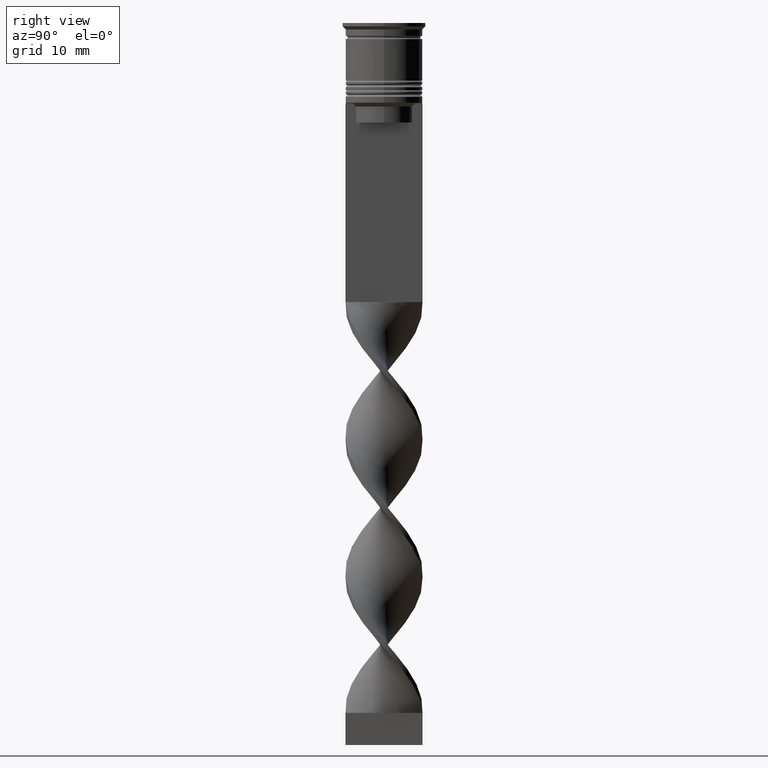
[diagram: clean part render]
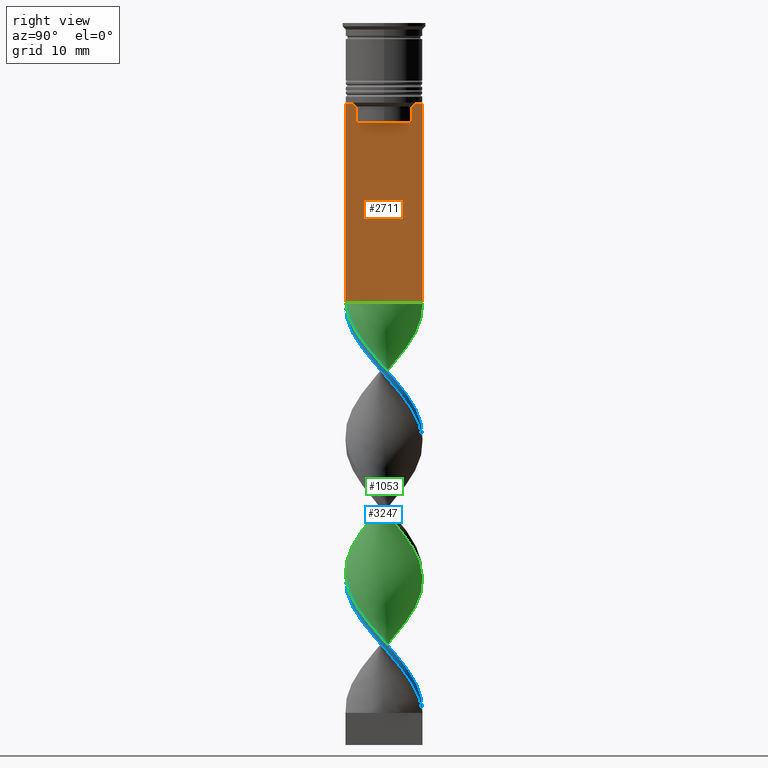
[diagram: same view with three faces highlighted in distinct colors, each labeled with its STEP entity id]
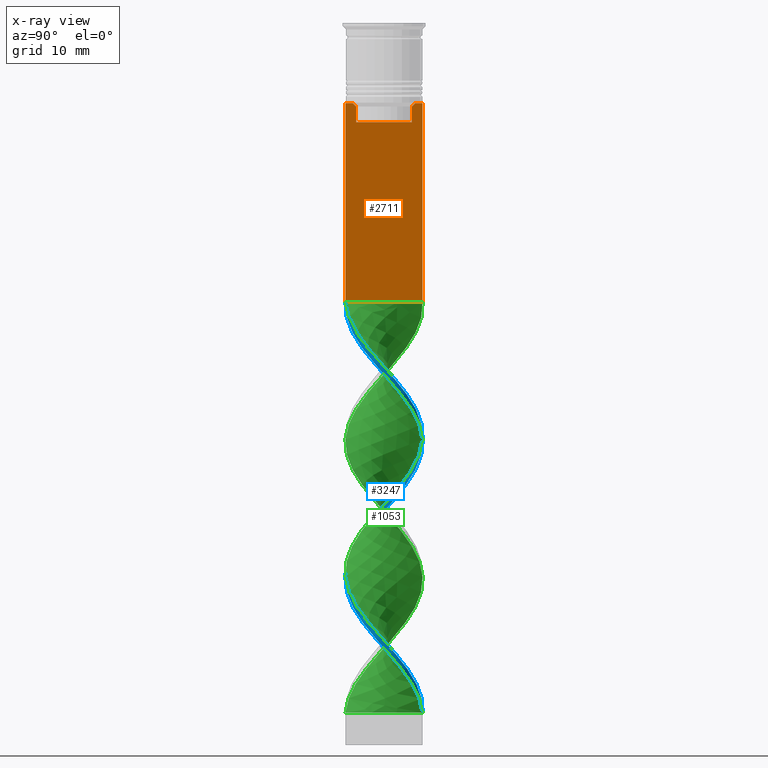
[diagram: x-ray of the same camera — body ghosted, the three highlighted faces saturated]
A machine part, right view with three faces highlighted in distinct colors.
The next image is the same camera in x-ray (body ghosted, the three faces saturated) — at least one of them is partly hidden behind the body in this view.
Their STEP definitions:

[orange] entity #2711 — the highlighted planar face has unit normal (-1, 0, 0).
#53 = AXIS2_PLACEMENT_3D ( 'NONE', #1636, #2394, #2124 ) ;
#70 = VERTEX_POINT ( 'NONE', #3139 ) ;
#76 = B_SPLINE_CURVE_WITH_KNOTS ( 'NONE', 3,
 ( #2959, #1521, #2634, #2372 ),
 .UNSPECIFIED., .F., .F.,
 ( 4, 4 ),
 ( 0.008336552452178421987, 0.009045730124312839626 ),
 .UNSPECIFIED. ) ;
#180 = EDGE_CURVE ( 'NONE', #349, #1875, #1499, .T. ) ;
#209 = CARTESIAN_POINT ( 'NONE',  ( 0.5000000000000002220, -6.000000000000000000, -0.4584054212077061097 ) ) ;
#238 = VECTOR ( 'NONE', #2759, 1000.000000000000000 ) ;
#243 = DIRECTION ( 'NONE',  ( 0.000000000000000000, 0.000000000000000000, -1.000000000000000000 ) ) ;
#264 = LINE ( 'NONE', #3081, #238 ) ;
#268 = VECTOR ( 'NONE', #521, 1000.000000000000000 ) ;
#319 = VECTOR ( 'NONE', #1967, 1000.000000000000000 ) ;
#349 = VERTEX_POINT ( 'NONE', #1861 ) ;
#369 = EDGE_CURVE ( 'NONE', #1691, #3536, #2701, .T. ) ;
#380 = CARTESIAN_POINT ( 'NONE',  ( 0.5000000000000002220, 4.371498598878878816, 0.000000000000000000 ) ) ;
#384 = VERTEX_POINT ( 'NONE', #2756 ) ;
#494 = CARTESIAN_POINT ( 'NONE',  ( 0.5000000000000002220, 6.000000000000000888, -0.4584054212077061097 ) ) ;
#504 = EDGE_CURVE ( 'NONE', #349, #3378, #2457, .T. ) ;
#505 = LINE ( 'NONE', #796, #2967 ) ;
#520 = PLANE ( 'NONE',  #53 ) ;
#521 = DIRECTION ( 'NONE',  ( 0.000000000000000000, -1.000000000000000000, 0.000000000000000000 ) ) ;
#571 = EDGE_LOOP ( 'NONE', ( #2486, #2567, #1252, #3412, #987, #889, #1748, #1281, #2665, #2432, #3178, #1980 ) ) ;
#586 = CARTESIAN_POINT ( 'NONE',  ( 0.5000000000000002220, -6.000000000000000000, -12.50000000000000000 ) ) ;
#596 = CARTESIAN_POINT ( 'NONE',  ( 0.5000000000000002220, -4.371498598878878816, 0.000000000000000000 ) ) ;
#679 = B_SPLINE_CURVE_WITH_KNOTS ( 'NONE', 3,
 ( #3257, #2110, #1033, #1014 ),
 .UNSPECIFIED., .F., .F.,
 ( 4, 4 ),
 ( 0.02089901220910808308, 0.02161421017310286019 ),
 .UNSPECIFIED. ) ;
#722 = VERTEX_POINT ( 'NONE', #3212 ) ;
#794 = EDGE_CURVE ( 'NONE', #2637, #1919, #76, .T. ) ;
#796 = CARTESIAN_POINT ( 'NONE',  ( 0.5000000000000002220, -6.000000000000000000, -12.50000000000000000 ) ) ;
#889 = ORIENTED_EDGE ( 'NONE', *, *, #1335, .T. ) ;
#987 = ORIENTED_EDGE ( 'NONE', *, *, #1128, .T. ) ;
#1014 = CARTESIAN_POINT ( 'NONE',  ( 0.5000000000000002220, -4.874423042781576676, -12.50000000000000000 ) ) ;
#1033 = CARTESIAN_POINT ( 'NONE',  ( 0.5000000000000002220, -4.706831372970962768, -12.66671687695981774 ) ) ;
#1068 = FACE_OUTER_BOUND ( 'NONE', #571, .T. ) ;
#1128 = EDGE_CURVE ( 'NONE', #2450, #384, #1418, .T. ) ;
#1252 = ORIENTED_EDGE ( 'NONE', *, *, #2526, .T. ) ;
#1281 = ORIENTED_EDGE ( 'NONE', *, *, #3129, .T. ) ;
#1335 = EDGE_CURVE ( 'NONE', #384, #70, #679, .T. ) ;
#1389 = LINE ( 'NONE', #586, #3262 ) ;
#1418 = LINE ( 'NONE', #596, #2937 ) ;
#1422 = DIRECTION ( 'NONE',  ( 0.000000000000000000, 0.000000000000000000, -1.000000000000000000 ) ) ;
#1499 = LINE ( 'NONE', #494, #2174 ) ;
#1521 = CARTESIAN_POINT ( 'NONE',  ( 0.5000000000000002220, 4.706831415367288329, -12.66671683478479160 ) ) ;
#1548 = DIRECTION ( 'NONE',  ( 0.000000000000000000, 0.000000000000000000, -1.000000000000000000 ) ) ;
#1561 = CARTESIAN_POINT ( 'NONE',  ( 0.5000000000000002220, 4.371498598878878816, -15.50000000000000000 ) ) ;
#1619 = LINE ( 'NONE', #2950, #1690 ) ;
#1625 = EDGE_CURVE ( 'NONE', #70, #722, #2786, .T. ) ;
#1636 = CARTESIAN_POINT ( 'NONE',  ( 0.5000000000000002220, -6.000000000000000000, -0.4584054212077061097 ) ) ;
#1667 = DIRECTION ( 'NONE',  ( 0.000000000000000000, -1.000000000000000000, 0.000000000000000000 ) ) ;
#1690 = VECTOR ( 'NONE', #3293, 1000.000000000000000 ) ;
#1691 = VERTEX_POINT ( 'NONE', #3365 ) ;
#1748 = ORIENTED_EDGE ( 'NONE', *, *, #1625, .T. ) ;
#1861 = CARTESIAN_POINT ( 'NONE',  ( 0.5000000000000002220, 6.000000000000000888, -12.50000000000000000 ) ) ;
#1875 = VERTEX_POINT ( 'NONE', #2256 ) ;
#1919 = VERTEX_POINT ( 'NONE', #2651 ) ;
#1945 = DIRECTION ( 'NONE',  ( -0.000000000000000000, -0.000000000000000000, 1.000000000000000000 ) ) ;
#1967 = DIRECTION ( 'NONE',  ( 0.000000000000000000, -1.000000000000000000, 0.000000000000000000 ) ) ;
#1980 = ORIENTED_EDGE ( 'NONE', *, *, #504, .T. ) ;
#1982 = CARTESIAN_POINT ( 'NONE',  ( 0.5000000000000002220, -4.371498598878878816, -15.50000000000000000 ) ) ;
#2110 = CARTESIAN_POINT ( 'NONE',  ( 0.5000000000000002220, -4.539195586926423331, -12.83338928448044314 ) ) ;
#2124 = DIRECTION ( 'NONE',  ( 0.000000000000000000, 0.000000000000000000, 1.000000000000000000 ) ) ;
#2174 = VECTOR ( 'NONE', #243, 1000.000000000000000 ) ;
#2256 = CARTESIAN_POINT ( 'NONE',  ( 0.5000000000000002220, 6.000000000000000888, -43.50000000000000000 ) ) ;
#2304 = LINE ( 'NONE', #380, #2794 ) ;
#2372 = CARTESIAN_POINT ( 'NONE',  ( 0.5000000000000002220, 4.371498598878878816, -13.00000000000000178 ) ) ;
#2394 = DIRECTION ( 'NONE',  ( -1.000000000000000000, 0.000000000000000000, 0.000000000000000000 ) ) ;
#2432 = ORIENTED_EDGE ( 'NONE', *, *, #3093, .T. ) ;
#2450 = VERTEX_POINT ( 'NONE', #1982 ) ;
#2457 = LINE ( 'NONE', #3302, #319 ) ;
#2486 = ORIENTED_EDGE ( 'NONE', *, *, #2586, .T. ) ;
#2526 = EDGE_CURVE ( 'NONE', #1919, #2974, #2304, .T. ) ;
#2567 = ORIENTED_EDGE ( 'NONE', *, *, #794, .T. ) ;
#2572 = EDGE_CURVE ( 'NONE', #2974, #2450, #1619, .T. ) ;
#2586 = EDGE_CURVE ( 'NONE', #3378, #2637, #505, .T. ) ;
#2634 = CARTESIAN_POINT ( 'NONE',  ( 0.5000000000000002220, 4.539195634199896467, -12.83338923751318816 ) ) ;
#2637 = VERTEX_POINT ( 'NONE', #2982 ) ;
#2651 = CARTESIAN_POINT ( 'NONE',  ( 0.5000000000000002220, 4.371498598878878816, -13.00000000000000178 ) ) ;
#2665 = ORIENTED_EDGE ( 'NONE', *, *, #369, .T. ) ;
#2701 = LINE ( 'NONE', #209, #2761 ) ;
#2711 = ADVANCED_FACE ( 'NONE', ( #1068 ), #520, .F. ) ;
#2712 = DIRECTION ( 'NONE',  ( 0.000000000000000000, -1.000000000000000000, 0.000000000000000000 ) ) ;
#2756 = CARTESIAN_POINT ( 'NONE',  ( 0.5000000000000002220, -4.371498598878878816, -13.00000000000000178 ) ) ;
#2759 = DIRECTION ( 'NONE',  ( 0.000000000000000000, 1.000000000000000000, 0.000000000000000000 ) ) ;
#2761 = VECTOR ( 'NONE', #1422, 1000.000000000000000 ) ;
#2786 = LINE ( 'NONE', #3090, #268 ) ;
#2794 = VECTOR ( 'NONE', #1548, 1000.000000000000000 ) ;
#2905 = CARTESIAN_POINT ( 'NONE',  ( 0.5000000000000002220, 5.878775382679627626, -12.50000000000000000 ) ) ;
#2937 = VECTOR ( 'NONE', #1945, 1000.000000000000000 ) ;
#2950 = CARTESIAN_POINT ( 'NONE',  ( 0.5000000000000002220, 4.399999999999999467, -15.50000000000000000 ) ) ;
#2959 = CARTESIAN_POINT ( 'NONE',  ( 0.5000000000000002220, 4.874423042781576676, -12.50000000000000000 ) ) ;
#2967 = VECTOR ( 'NONE', #2712, 1000.000000000000000 ) ;
#2974 = VERTEX_POINT ( 'NONE', #1561 ) ;
#2982 = CARTESIAN_POINT ( 'NONE',  ( 0.5000000000000002220, 4.874423042781576676, -12.50000000000000000 ) ) ;
#3081 = CARTESIAN_POINT ( 'NONE',  ( 0.5000000000000002220, -6.000000000000000000, -43.50000000000000000 ) ) ;
#3090 = CARTESIAN_POINT ( 'NONE',  ( 0.5000000000000002220, -6.000000000000000000, -12.50000000000000000 ) ) ;
#3093 = EDGE_CURVE ( 'NONE', #3536, #1875, #264, .T. ) ;
#3129 = EDGE_CURVE ( 'NONE', #722, #1691, #1389, .T. ) ;
#3139 = CARTESIAN_POINT ( 'NONE',  ( 0.5000000000000002220, -4.874423042781576676, -12.50000000000000000 ) ) ;
#3178 = ORIENTED_EDGE ( 'NONE', *, *, #180, .F. ) ;
#3212 = CARTESIAN_POINT ( 'NONE',  ( 0.5000000000000002220, -5.878775382679627626, -12.50000000000000000 ) ) ;
#3257 = CARTESIAN_POINT ( 'NONE',  ( 0.5000000000000002220, -4.371498598878878816, -13.00000000000000178 ) ) ;
#3262 = VECTOR ( 'NONE', #1667, 1000.000000000000000 ) ;
#3293 = DIRECTION ( 'NONE',  ( 0.000000000000000000, -1.000000000000000000, 0.000000000000000000 ) ) ;
#3302 = CARTESIAN_POINT ( 'NONE',  ( 0.5000000000000002220, -6.000000000000000000, -12.50000000000000000 ) ) ;
#3365 = CARTESIAN_POINT ( 'NONE',  ( 0.5000000000000002220, -6.000000000000000000, -12.50000000000000000 ) ) ;
#3378 = VERTEX_POINT ( 'NONE', #2905 ) ;
#3412 = ORIENTED_EDGE ( 'NONE', *, *, #2572, .T. ) ;
#3418 = CARTESIAN_POINT ( 'NONE',  ( 0.5000000000000002220, -5.999999999999999112, -43.50000000000000000 ) ) ;
#3536 = VERTEX_POINT ( 'NONE', #3418 ) ;

[blue] entity #3247 — the highlighted face is a freeform B-spline surface patch.
#10 = CARTESIAN_POINT ( 'NONE',  ( 4.352991323530321033, -4.159503159906209113, -48.42307692307691269 ) ) ;
#27 = CARTESIAN_POINT ( 'NONE',  ( 0.9504230770123223149, 5.945308736700090080, -63.19230769230768630 ) ) ;
#33 = CARTESIAN_POINT ( 'NONE',  ( 4.858046446425394294, 3.630954320453863016, -59.08974358974358410 ) ) ;
#50 = CARTESIAN_POINT ( 'NONE',  ( -0.9504230770123187622, 5.945308736700090968, -66.47435897435896379 ) ) ;
#59 = CARTESIAN_POINT ( 'NONE',  ( 4.858046446425393405, -3.630954320453865236, -49.24358974358973740 ) ) ;
#64 = CARTESIAN_POINT ( 'NONE',  ( 4.858046446425394294, 3.630954320453863016, -101.7564102564102484 ) ) ;
#66 = CARTESIAN_POINT ( 'NONE',  ( -2.345611019436009581, -5.545097739941142301, -82.88461538461537259 ) ) ;
#71 = CARTESIAN_POINT ( 'NONE',  ( 4.653870821996360263, -3.819880413333763158, -50.06410256410256210 ) ) ;
#79 = CARTESIAN_POINT ( 'NONE',  ( -5.117688277455215484, -3.254798188466751174, -78.78205128205127039 ) ) ;
#85 = CARTESIAN_POINT ( 'NONE',  ( -6.044068061194096231, -0.5036723384328406494, -75.50000000000000000 ) ) ;
#89 = CARTESIAN_POINT ( 'NONE',  ( 1.921364894438374549, 5.705993072412533174, -105.8589743589743506 ) ) ;
#97 = CARTESIAN_POINT ( 'NONE',  ( 5.432795012591220996, 2.595137443597920424, -56.62820512820513130 ) ) ;
#103 = CARTESIAN_POINT ( 'NONE',  ( -4.653870821996361151, -3.819880413333761826, -79.60256410256410220 ) ) ;
#113 = CARTESIAN_POINT ( 'NONE',  ( 6.016521584715985860, -0.2268656444829121599, -96.01282051282051100 ) ) ;
#126 = CARTESIAN_POINT ( 'NONE',  ( 3.604480575359220396, -4.822625818147004750, -91.08974358974359120 ) ) ;
#134 = CARTESIAN_POINT ( 'NONE',  ( -5.988975108237873712, 0.9574036273986639145, -73.85897435897436480 ) ) ;
#138 = CARTESIAN_POINT ( 'NONE',  ( 1.921364894438374549, 5.705993072412533174, -105.8589743589743506 ) ) ;
#145 = CARTESIAN_POINT ( 'NONE',  ( -5.432795012591220107, 2.595137443597922644, -73.03846153846153300 ) ) ;
#156 = CARTESIAN_POINT ( 'NONE',  ( -5.988975108237873712, -0.9574036273986618051, -77.14102564102563520 ) ) ;
#165 = CARTESIAN_POINT ( 'NONE',  ( -6.044068061194097119, 0.5036723384328423148, -75.50000000000000000 ) ) ;
#170 = CARTESIAN_POINT ( 'NONE',  ( -3.018907784180934417, 5.260288998093236579, -68.93589743589743080 ) ) ;
#188 = CARTESIAN_POINT ( 'NONE',  ( 5.117688277455213708, -3.254798188466753839, -50.88461538461538680 ) ) ;
#206 = CARTESIAN_POINT ( 'NONE',  ( 4.858046446425394294, 3.630954320453863016, -59.08974358974359120 ) ) ;
#224 = CARTESIAN_POINT ( 'NONE',  ( 0.9504230770123225369, 5.945308736700090968, -105.8589743589743506 ) ) ;
#240 = CARTESIAN_POINT ( 'NONE',  ( 3.604480575359220396, -4.822625818147004750, -91.08974358974359120 ) ) ;
#241 = VERTEX_POINT ( 'NONE', #2439 ) ;
#283 = CARTESIAN_POINT ( 'NONE',  ( -0.1666666666666661578, 5.999999999999999112, -107.5000000000000000 ) ) ;
#288 = ORIENTED_EDGE ( 'NONE', *, *, #2493, .T. ) ;
#303 = CARTESIAN_POINT ( 'NONE',  ( 3.018907784180934417, 5.260288998093234802, -60.73076923076922640 ) ) ;
#321 = CARTESIAN_POINT ( 'NONE',  ( -3.231067045089215384, 5.080374567897374405, -68.11538461538459899 ) ) ;
#326 = CARTESIAN_POINT ( 'NONE',  ( 0.2285318993335633819, -6.060710991611130360, -44.32051282051282470 ) ) ;
#334 = CARTESIAN_POINT ( 'NONE',  ( 3.018907784180935305, 5.260288998093234802, -60.73076923076922640 ) ) ;
#336 = CARTESIAN_POINT ( 'NONE',  ( 0.5000000000000005551, 6.000000000000000000, -107.5000000000000000 ) ) ;
#341 = CARTESIAN_POINT ( 'NONE',  ( -5.895984904460662257, -1.219574518580961220, -76.32051282051281760 ) ) ;
#345 = CARTESIAN_POINT ( 'NONE',  ( 1.672314254691077640, -5.829906481789053352, -45.96153846153845990 ) ) ;
#353 = CARTESIAN_POINT ( 'NONE',  ( -4.352991323530321033, 4.159503159906210001, -69.75641025641024839 ) ) ;
#358 = CARTESIAN_POINT ( 'NONE',  ( 3.231067045089216716, 5.080374567897374405, -104.2179487179487012 ) ) ;
#363 = CARTESIAN_POINT ( 'NONE',  ( 1.672314254691077640, -5.829906481789053352, -88.62820512820512420 ) ) ;
#368 = CARTESIAN_POINT ( 'NONE',  ( 5.585824691029640299, -2.362838774426348820, -93.55128205128204399 ) ) ;
#387 = CARTESIAN_POINT ( 'NONE',  ( -0.9504230770123258676, -5.945308736700090968, -84.52564102564103621 ) ) ;
#394 = CARTESIAN_POINT ( 'NONE',  ( 4.190053366537507706, 4.384962638200772034, -101.7564102564102484 ) ) ;
#397 = CARTESIAN_POINT ( 'NONE',  ( -4.858046446425396070, -3.630954320453860351, -80.42307692307691980 ) ) ;
#404 = CARTESIAN_POINT ( 'NONE',  ( 3.604480575359221728, 4.822625818147002974, -59.91025641025640880 ) ) ;
#411 = CARTESIAN_POINT ( 'NONE',  ( 5.221935568727515076, -2.996896547440107028, -92.73076923076922640 ) ) ;
#415 = CARTESIAN_POINT ( 'NONE',  ( 0.5000000000000005551, 6.000000000000000000, -107.5000000000000000 ) ) ;
#421 = CARTESIAN_POINT ( 'NONE',  ( -5.895984904460662257, 1.219574518580968325, -74.67948717948718240 ) ) ;
#441 = CARTESIAN_POINT ( 'NONE',  ( 0.2285318993335633819, -6.060710991611129472, -44.32051282051282470 ) ) ;
#456 = CARTESIAN_POINT ( 'NONE',  ( -0.2285318993335620774, 6.060710991611129472, -65.65384615384614619 ) ) ;
#473 = CARTESIAN_POINT ( 'NONE',  ( 2.345611019436006917, 5.545097739941143189, -104.2179487179487012 ) ) ;
#491 = CARTESIAN_POINT ( 'NONE',  ( -4.190053366537505042, 4.384962638200773810, -70.57692307692306599 ) ) ;
#510 = CARTESIAN_POINT ( 'NONE',  ( 1.672314254691077862, -5.829906481789053352, -88.62820512820513841 ) ) ;
#528 = CARTESIAN_POINT ( 'NONE',  ( -2.345611019436006028, 5.545097739941144077, -68.11538461538459899 ) ) ;
#540 = CARTESIAN_POINT ( 'NONE',  ( 5.585824691029638522, -2.362838774426348376, -50.88461538461537970 ) ) ;
#558 = DIRECTION ( 'NONE',  ( -1.000000000000000000, 0.000000000000000000, 0.000000000000000000 ) ) ;
#575 = CARTESIAN_POINT ( 'NONE',  ( -4.352991323530320145, 4.159503159906209113, -69.75641025641024839 ) ) ;
#592 = CARTESIAN_POINT ( 'NONE',  ( 0.2285318993335655469, 6.060710991611129472, -64.01282051282051100 ) ) ;
#601 = CARTESIAN_POINT ( 'NONE',  ( 4.352991323530321921, -4.159503159906209113, -48.42307692307691269 ) ) ;
#604 = CARTESIAN_POINT ( 'NONE',  ( 0.1666666666666672403, 6.000000000000000000, -107.5000000000000000 ) ) ;
#614 = CARTESIAN_POINT ( 'NONE',  ( 6.016521584715985860, 0.2268656444829105501, -54.98717948717948190 ) ) ;
#621 = CARTESIAN_POINT ( 'NONE',  ( 2.614197889543182107, -5.472697136436197596, -88.62820512820513841 ) ) ;
#631 = CARTESIAN_POINT ( 'NONE',  ( 5.787399899633756561, 1.660121200912505479, -99.29487179487178139 ) ) ;
#639 = CARTESIAN_POINT ( 'NONE',  ( -2.614197889543180331, 5.472697136436198484, -67.29487179487178139 ) ) ;
#646 = CARTESIAN_POINT ( 'NONE',  ( -0.4999999999999994449, 5.999999999999999112, -107.5000000000000000 ) ) ;
#649 = CARTESIAN_POINT ( 'NONE',  ( -5.117688277455211932, 3.254798188466756503, -72.21794871794871540 ) ) ;
#655 = CARTESIAN_POINT ( 'NONE',  ( 5.747901747727228283, 1.935476698729089007, -55.80769230769230660 ) ) ;
#662 = CARTESIAN_POINT ( 'NONE',  ( -5.747901747727229171, -1.935476698729087008, -77.14102564102563520 ) ) ;
#666 = CARTESIAN_POINT ( 'NONE',  ( -6.016521584715984972, -0.2268656444829071639, -76.32051282051281760 ) ) ;
#676 = CARTESIAN_POINT ( 'NONE',  ( 4.190053366537507706, 4.384962638200771146, -59.08974358974359120 ) ) ;
#682 = CARTESIAN_POINT ( 'NONE',  ( 5.747901747727227395, 1.935476698729089229, -98.47435897435896379 ) ) ;
#686 = CARTESIAN_POINT ( 'NONE',  ( 4.352991323530322809, 4.159503159906207337, -102.5769230769230660 ) ) ;
#694 = CARTESIAN_POINT ( 'NONE',  ( -5.747901747727229171, 1.935476698729089007, -73.85897435897436480 ) ) ;
#707 = CARTESIAN_POINT ( 'NONE',  ( -3.018907784180933973, 5.260288998093236579, -68.93589743589743080 ) ) ;
#713 = CARTESIAN_POINT ( 'NONE',  ( 5.221935568727516852, 2.996896547440106140, -58.26923076923076650 ) ) ;
#734 = CARTESIAN_POINT ( 'NONE',  ( 2.614197889543183884, 5.472697136436196708, -62.37179487179486870 ) ) ;
#749 = CARTESIAN_POINT ( 'NONE',  ( 4.190053366537507706, 4.384962638200771146, -101.7564102564102484 ) ) ;
#767 = CARTESIAN_POINT ( 'NONE',  ( 6.016521584715985860, 0.2268656444829105501, -54.98717948717948190 ) ) ;
#782 = CARTESIAN_POINT ( 'NONE',  ( 6.044068061194097119, -0.5036723384328415376, -54.16666666666666430 ) ) ;
#783 = CARTESIAN_POINT ( 'NONE',  ( 5.747901747727229171, -1.935476698729089451, -95.19230769230769340 ) ) ;
#811 = CARTESIAN_POINT ( 'NONE',  ( 0.5000000000000002220, -5.999999999999999112, -43.50000000000000000 ) ) ;
#840 = FACE_OUTER_BOUND ( 'NONE', #3325, .T. ) ;
#847 = CARTESIAN_POINT ( 'NONE',  ( 4.190053366537507706, 4.384962638200772034, -59.08974358974358410 ) ) ;
#861 = VERTEX_POINT ( 'NONE', #1269 ) ;
#863 = CARTESIAN_POINT ( 'NONE',  ( 4.653870821996360263, 3.819880413333762270, -58.26923076923076650 ) ) ;
#865 =( BOUNDED_CURVE ( )  B_SPLINE_CURVE ( 2, ( #811, #1157, #1104, #2839, #3384, #2820, #10, #2803, #3345, #540, #2262, #1433, #1924, #1361, #2467, #3072, #3585, #2226, #863, #847, #2766, #303, #2519, #3327, #27, #592, #1139, #1381, #3604, #1939, #321, #2212, #575, #2246, #1977, #3089, #1704, #3436, #2635, #85, #341, #662, #3422, #1232, #103, #2066, #920, #2281, #66, #1756, #2315, #3193, #3142, #1177, #1486, #2558, #1812, #1774, #2872, #903, #411, #2600, #1249, #1738, #2047, #2892, #1214, #682, #2353, #2028, #3474, #394, #3402, #1502, #975, #2333, #937, #3156, #646 ),
 .UNSPECIFIED., .F., .T. ) 
 B_SPLINE_CURVE_WITH_KNOTS ( ( 3, 2, 2, 2, 2, 2, 2, 2, 2, 2, 2, 2, 2, 2, 2, 2, 2, 2, 2, 2, 2, 2, 2, 2, 2, 2, 2, 2, 2, 2, 2, 2, 2, 2, 2, 2, 2, 2, 2, 3 ),
 ( 0.000000000000000000, 0.01923076923076923184, 0.03846153846153846367, 0.05769230769230768857, 0.07692307692307692735, 0.09615384615384615918, 0.1153846153846153771, 0.1346153846153846090, 0.1538461538461538547, 0.1730769230769230449, 0.1923076923076923184, 0.2115384615384615363, 0.2307692307692307543, 0.2500000000000000000, 0.2692307692307692180, 0.2884615384615384359, 0.3076923076923077094, 0.3269230769230769273, 0.3461538461538460898, 0.3653846153846153633, 0.3846153846153846367, 0.4038461538461539102, 0.4230769230769230727, 0.4423076923076922906, 0.4615384615384615086, 0.4807692307692307820, 0.5000000000000000000, 0.5192307692307692735, 0.5384615384615384359, 0.5576923076923077094, 0.5769230769230768718, 0.5961538461538461453, 0.6153846153846154188, 0.6346153846153845812, 0.6538461538461538547, 0.6730769230769230171, 0.6923076923076921796, 0.7115384615384615641, 0.7307692307692307265, 0.7500000000000000000 ),
 .UNSPECIFIED. ) 
 CURVE ( )  GEOMETRIC_REPRESENTATION_ITEM ( )  RATIONAL_B_SPLINE_CURVE ( ( 1.000000000000000000, 0.9927088740980539727, 1.000000000000000000, 0.9927088740980539727, 1.000000000000000000, 0.9927088740980539727, 1.000000000000000000, 0.9927088740980539727, 1.000000000000000000, 0.9927088740980539727, 1.000000000000000000, 0.9927088740980539727, 1.000000000000000000, 0.9927088740980539727, 1.000000000000000000, 0.9927088740980539727, 1.000000000000000000, 0.9927088740980539727, 1.000000000000000000, 0.9927088740980539727, 1.000000000000000000, 0.9927088740980539727, 1.000000000000000000, 0.9927088740980539727, 1.000000000000000000, 0.9927088740980539727, 1.000000000000000000, 0.9927088740980539727, 1.000000000000000000, 0.9927088740980539727, 1.000000000000000000, 0.9927088740980539727, 1.000000000000000000, 0.9927088740980539727, 1.000000000000000000, 0.9927088740980539727, 1.000000000000000000, 0.9927088740980539727, 1.000000000000000000, 0.9927088740980539727, 1.000000000000000000, 0.9927088740980539727, 1.000000000000000000, 0.9927088740980539727, 1.000000000000000000, 0.9927088740980539727, 1.000000000000000000, 0.9927088740980539727, 1.000000000000000000, 0.9927088740980539727, 1.000000000000000000, 0.9927088740980539727, 1.000000000000000000, 0.9927088740980539727, 1.000000000000000000, 0.9927088740980539727, 1.000000000000000000, 0.9927088740980539727, 1.000000000000000000, 0.9927088740980539727, 1.000000000000000000, 0.9927088740980539727, 1.000000000000000000, 0.9927088740980539727, 1.000000000000000000, 0.9927088740980539727, 1.000000000000000000, 0.9927088740980539727, 1.000000000000000000, 0.9927088740980539727, 1.000000000000000000, 0.9927088740980539727, 1.000000000000000000, 0.9927088740980539727, 1.000000000000000000, 0.9927088740980539727, 1.000000000000000000, 0.9927088740980539727, 1.000000000000000000 ) ) 
 REPRESENTATION_ITEM ( '' )  );
#878 = CARTESIAN_POINT ( 'NONE',  ( 1.672314254691079638, 5.829906481789052464, -62.37179487179486870 ) ) ;
#887 = CARTESIAN_POINT ( 'NONE',  ( 5.988975108237873712, 0.9574036273986640255, -55.80769230769230660 ) ) ;
#895 = CARTESIAN_POINT ( 'NONE',  ( 0.5000000000000002220, -6.000000000000000000, -86.16666666666667140 ) ) ;
#903 = CARTESIAN_POINT ( 'NONE',  ( 4.858046446425392517, -3.630954320453864348, -91.91025641025643722 ) ) ;
#909 = CARTESIAN_POINT ( 'NONE',  ( 5.895984904460662257, -1.219574518580966105, -96.01282051282051100 ) ) ;
#914 = CARTESIAN_POINT ( 'NONE',  ( -3.018907784180935749, -5.260288998093234802, -82.06410256410255499 ) ) ;
#920 = CARTESIAN_POINT ( 'NONE',  ( -3.604480575359221728, -4.822625818147002086, -81.24358974358973740 ) ) ;
#924 = CARTESIAN_POINT ( 'NONE',  ( -5.585824691029640299, -2.362838774426345712, -78.78205128205127039 ) ) ;
#932 = CARTESIAN_POINT ( 'NONE',  ( 3.847936200635250437, -4.688051999358553878, -47.60256410256408799 ) ) ;
#937 = CARTESIAN_POINT ( 'NONE',  ( 0.9504230770123223149, 5.945308736700090080, -105.8589743589743506 ) ) ;
#949 = CARTESIAN_POINT ( 'NONE',  ( 5.988975108237873712, -0.9574036273986643586, -52.52564102564103621 ) ) ;
#960 = CARTESIAN_POINT ( 'NONE',  ( 5.117688277455213708, -3.254798188466753839, -93.55128205128204399 ) ) ;
#969 = CARTESIAN_POINT ( 'NONE',  ( -5.432795012591220107, 2.595137443597922644, -73.03846153846153300 ) ) ;
#975 = CARTESIAN_POINT ( 'NONE',  ( 2.345611019436006472, 5.545097739941142301, -104.2179487179487012 ) ) ;
#979 = CARTESIAN_POINT ( 'NONE',  ( -0.4999999999999997780, -6.000000000000000000, -86.16666666666667140 ) ) ;
#985 = CARTESIAN_POINT ( 'NONE',  ( 0.5000000000000005551, 6.000000000000000000, -64.83333333333332860 ) ) ;
#1003 = CARTESIAN_POINT ( 'NONE',  ( -1.921364894438377657, -5.705993072412531397, -84.52564102564103621 ) ) ;
#1023 = CARTESIAN_POINT ( 'NONE',  ( -4.858046446425396070, -3.630954320453860351, -80.42307692307691980 ) ) ;
#1038 = CARTESIAN_POINT ( 'NONE',  ( 1.228531899333566102, 5.939289008388869640, -64.01282051282051100 ) ) ;
#1055 = CARTESIAN_POINT ( 'NONE',  ( -0.4999999999999997780, -6.000000000000000000, -43.50000000000000000 ) ) ;
#1056 = CARTESIAN_POINT ( 'NONE',  ( 5.895984904460662257, -1.219574518580966105, -96.01282051282051100 ) ) ;
#1075 = CARTESIAN_POINT ( 'NONE',  ( 5.221935568727516852, 2.996896547440106140, -58.26923076923076650 ) ) ;
#1104 = CARTESIAN_POINT ( 'NONE',  ( 1.921364894438372550, -5.705993072412533174, -45.14102564102563520 ) ) ;
#1105 = CARTESIAN_POINT ( 'NONE',  ( 0.5000000000000002220, -6.000000000000000000, -43.50000000000000000 ) ) ;
#1114 = CARTESIAN_POINT ( 'NONE',  ( 0.5000000000000002220, -6.000000000000000000, -43.50000000000000000 ) ) ;
#1139 = CARTESIAN_POINT ( 'NONE',  ( -0.4999999999999994449, 5.999999999999999112, -64.83333333333332860 ) ) ;
#1144 = CARTESIAN_POINT ( 'NONE',  ( 5.747901747727229171, -1.935476698729089451, -52.52564102564102910 ) ) ;
#1157 = CARTESIAN_POINT ( 'NONE',  ( 1.228531899333563215, -5.939289008388868751, -44.32051282051282470 ) ) ;
#1170 = CARTESIAN_POINT ( 'NONE',  ( -0.2285318993335664073, -6.060710991611129472, -85.34615384615383959 ) ) ;
#1177 = CARTESIAN_POINT ( 'NONE',  ( 1.228531899333563215, -5.939289008388868751, -86.98717948717948900 ) ) ;
#1181 = CARTESIAN_POINT ( 'NONE',  ( 4.190053366537506818, -4.384962638200773810, -49.24358974358974450 ) ) ;
#1187 = CARTESIAN_POINT ( 'NONE',  ( -5.747901747727230060, -1.935476698729087008, -77.14102564102563520 ) ) ;
#1200 = CARTESIAN_POINT ( 'NONE',  ( 4.858046446425394294, 3.630954320453863016, -101.7564102564102484 ) ) ;
#1207 = CARTESIAN_POINT ( 'NONE',  ( 5.221935568727515964, -2.996896547440107472, -50.06410256410256210 ) ) ;
#1214 = CARTESIAN_POINT ( 'NONE',  ( 5.895984904460661369, 1.219574518580964329, -97.65384615384614619 ) ) ;
#1217 = CARTESIAN_POINT ( 'NONE',  ( 4.190053366537506818, -4.384962638200773810, -91.91025641025643722 ) ) ;
#1225 = CARTESIAN_POINT ( 'NONE',  ( -3.231067045089215828, 5.080374567897375293, -68.11538461538459899 ) ) ;
#1232 = CARTESIAN_POINT ( 'NONE',  ( -5.117688277455215484, -3.254798188466750286, -78.78205128205127039 ) ) ;
#1235 = CARTESIAN_POINT ( 'NONE',  ( 3.018907784180934417, -5.260288998093235691, -90.26923076923077360 ) ) ;
#1238 =( BOUNDED_SURFACE ( )  B_SPLINE_SURFACE ( 1, 2, ( 
 ( #1114, #3337, #1954, #2795, #2008, #932, #601, #59, #1207, #2275, #1766, #949, #2570, #1715, #1242, #655, #97, #2610, #2902, #676, #404, #334, #2345, #878, #2022, #1785, #3394, #2592, #2309, #639, #1225, #1515, #353, #2630, #3429, #3101, #2040, #134, #2886, #1750, #3151, #1187, #1989, #79, #2834, #1462, #1732, #914, #1446, #2551, #387, #1170, #895, #3121, #1496, #621, #2848, #2293, #3416, #3136, #2866, #368, #1478, #2058, #113, #2328, #3447, #3168, #3468, #2988, #2646, #749, #2718, #1858, #473, #3266, #224, #3244, #1803 ),
 ( #1840, #441, #1555, #2078, #2955, #2130, #1874, #1587, #2398, #188, #1821, #1295, #2698, #2973, #767, #2919, #2936, #1315, #713, #206, #3540, #3186, #1332, #734, #2418, #1038, #985, #456, #2664, #1570, #2145, #170, #1264, #491, #2097, #1609, #969, #694, #421, #2681, #1532, #156, #3206, #3520, #1279, #1023, #2366, #2384, #3485, #3504, #1003, #2113, #3225, #1624, #2736, #510, #3281, #2165, #240, #1895, #2435, #3010, #3555, #783, #1056, #2633, #3399, #2313, #1993, #1449, #2598, #64, #3154, #2331, #358, #3105, #138, #2045, #1484 ) ),
 .UNSPECIFIED., .F., .F., .F. ) 
 B_SPLINE_SURFACE_WITH_KNOTS ( ( 2, 2 ),
 ( 3, 2, 2, 2, 2, 2, 2, 2, 2, 2, 2, 2, 2, 2, 2, 2, 2, 2, 2, 2, 2, 2, 2, 2, 2, 2, 2, 2, 2, 2, 2, 2, 2, 2, 2, 2, 2, 2, 2, 3 ),
 ( 0.000000000000000000, 1.000000000000000000 ),
 ( 0.000000000000000000, 0.01923076923076923184, 0.03846153846153846367, 0.05769230769230769551, 0.07692307692307692735, 0.09615384615384615918, 0.1153846153846153910, 0.1346153846153846090, 0.1538461538461538547, 0.1730769230769230727, 0.1923076923076923184, 0.2115384615384615363, 0.2307692307692307820, 0.2500000000000000000, 0.2692307692307692180, 0.2884615384615384359, 0.3076923076923077094, 0.3269230769230769273, 0.3461538461538461453, 0.3653846153846153633, 0.3846153846153846367, 0.4038461538461538547, 0.4230769230769230727, 0.4423076923076922906, 0.4615384615384615641, 0.4807692307692307820, 0.5000000000000000000, 0.5192307692307692735, 0.5384615384615384359, 0.5576923076923077094, 0.5769230769230768718, 0.5961538461538461453, 0.6153846153846154188, 0.6346153846153845812, 0.6538461538461538547, 0.6730769230769231282, 0.6923076923076922906, 0.7115384615384615641, 0.7307692307692307265, 0.7500000000000000000 ),
 .UNSPECIFIED. ) 
 GEOMETRIC_REPRESENTATION_ITEM ( )  RATIONAL_B_SPLINE_SURFACE ( (
 ( 1.000000000000000000, 0.9927088740980539727, 1.000000000000000000, 0.9927088740980539727, 1.000000000000000000, 0.9927088740980539727, 1.000000000000000000, 0.9927088740980539727, 1.000000000000000000, 0.9927088740980539727, 1.000000000000000000, 0.9927088740980539727, 1.000000000000000000, 0.9927088740980539727, 1.000000000000000000, 0.9927088740980539727, 1.000000000000000000, 0.9927088740980539727, 1.000000000000000000, 0.9927088740980539727, 1.000000000000000000, 0.9927088740980539727, 1.000000000000000000, 0.9927088740980539727, 1.000000000000000000, 0.9927088740980539727, 1.000000000000000000, 0.9927088740980539727, 1.000000000000000000, 0.9927088740980539727, 1.000000000000000000, 0.9927088740980539727, 1.000000000000000000, 0.9927088740980539727, 1.000000000000000000, 0.9927088740980539727, 1.000000000000000000, 0.9927088740980539727, 1.000000000000000000, 0.9927088740980539727, 1.000000000000000000, 0.9927088740980539727, 1.000000000000000000, 0.9927088740980539727, 1.000000000000000000, 0.9927088740980539727, 1.000000000000000000, 0.9927088740980539727, 1.000000000000000000, 0.9927088740980539727, 1.000000000000000000, 0.9927088740980539727, 1.000000000000000000, 0.9927088740980539727, 1.000000000000000000, 0.9927088740980539727, 1.000000000000000000, 0.9927088740980539727, 1.000000000000000000, 0.9927088740980539727, 1.000000000000000000, 0.9927088740980539727, 1.000000000000000000, 0.9927088740980539727, 1.000000000000000000, 0.9927088740980539727, 1.000000000000000000, 0.9927088740980539727, 1.000000000000000000, 0.9927088740980539727, 1.000000000000000000, 0.9927088740980539727, 1.000000000000000000, 0.9927088740980539727, 1.000000000000000000, 0.9927088740980539727, 1.000000000000000000, 0.9927088740980539727, 1.000000000000000000),
 ( 1.000000000000000000, 0.9927088740980539727, 1.000000000000000000, 0.9927088740980539727, 1.000000000000000000, 0.9927088740980539727, 1.000000000000000000, 0.9927088740980539727, 1.000000000000000000, 0.9927088740980539727, 1.000000000000000000, 0.9927088740980539727, 1.000000000000000000, 0.9927088740980539727, 1.000000000000000000, 0.9927088740980539727, 1.000000000000000000, 0.9927088740980539727, 1.000000000000000000, 0.9927088740980539727, 1.000000000000000000, 0.9927088740980539727, 1.000000000000000000, 0.9927088740980539727, 1.000000000000000000, 0.9927088740980539727, 1.000000000000000000, 0.9927088740980539727, 1.000000000000000000, 0.9927088740980539727, 1.000000000000000000, 0.9927088740980539727, 1.000000000000000000, 0.9927088740980539727, 1.000000000000000000, 0.9927088740980539727, 1.000000000000000000, 0.9927088740980539727, 1.000000000000000000, 0.9927088740980539727, 1.000000000000000000, 0.9927088740980539727, 1.000000000000000000, 0.9927088740980539727, 1.000000000000000000, 0.9927088740980539727, 1.000000000000000000, 0.9927088740980539727, 1.000000000000000000, 0.9927088740980539727, 1.000000000000000000, 0.9927088740980539727, 1.000000000000000000, 0.9927088740980539727, 1.000000000000000000, 0.9927088740980539727, 1.000000000000000000, 0.9927088740980539727, 1.000000000000000000, 0.9927088740980539727, 1.000000000000000000, 0.9927088740980539727, 1.000000000000000000, 0.9927088740980539727, 1.000000000000000000, 0.9927088740980539727, 1.000000000000000000, 0.9927088740980539727, 1.000000000000000000, 0.9927088740980539727, 1.000000000000000000, 0.9927088740980539727, 1.000000000000000000, 0.9927088740980539727, 1.000000000000000000, 0.9927088740980539727, 1.000000000000000000, 0.9927088740980539727, 1.000000000000000000) ) ) 
 REPRESENTATION_ITEM ( '' )  SURFACE ( )  );
#1242 = CARTESIAN_POINT ( 'NONE',  ( 5.895984904460662257, 1.219574518580964551, -54.98717948717948190 ) ) ;
#1249 = CARTESIAN_POINT ( 'NONE',  ( 5.787399899633755673, -1.660121200912507033, -94.37179487179486159 ) ) ;
#1255 = CARTESIAN_POINT ( 'NONE',  ( -4.653870821996360263, 3.819880413333763158, -71.39743589743588359 ) ) ;
#1264 = CARTESIAN_POINT ( 'NONE',  ( -3.604480575359219507, 4.822625818147005639, -69.75641025641024839 ) ) ;
#1269 = CARTESIAN_POINT ( 'NONE',  ( 0.5000000000000005551, 6.000000000000000000, -107.5000000000000000 ) ) ;
#1274 = CARTESIAN_POINT ( 'NONE',  ( 6.044068061194097119, -0.5036723384328415376, -96.83333333333332860 ) ) ;
#1279 = CARTESIAN_POINT ( 'NONE',  ( -5.221935568727517740, -2.996896547440105252, -79.60256410256410220 ) ) ;
#1295 = CARTESIAN_POINT ( 'NONE',  ( 5.747901747727229171, -1.935476698729089451, -52.52564102564103621 ) ) ;
#1315 = CARTESIAN_POINT ( 'NONE',  ( 5.585824691029640299, 2.362838774426348376, -57.44871794871794890 ) ) ;
#1332 = CARTESIAN_POINT ( 'NONE',  ( 3.231067045089216716, 5.080374567897374405, -61.55128205128204399 ) ) ;
#1349 = CARTESIAN_POINT ( 'NONE',  ( 5.585824691029639411, 2.362838774426348376, -57.44871794871794890 ) ) ;
#1361 = CARTESIAN_POINT ( 'NONE',  ( 6.044068061194096231, 0.5036723384328413156, -54.16666666666666430 ) ) ;
#1377 = ORIENTED_EDGE ( 'NONE', *, *, #2807, .F. ) ;
#1381 = CARTESIAN_POINT ( 'NONE',  ( -1.228531899333561883, 5.939289008388868751, -65.65384615384614619 ) ) ;
#1433 = CARTESIAN_POINT ( 'NONE',  ( 5.988975108237873712, -0.9574036273986640255, -52.52564102564102910 ) ) ;
#1438 = CARTESIAN_POINT ( 'NONE',  ( 0.5000000000000005551, 6.000000000000000000, -64.83333333333332860 ) ) ;
#1446 = CARTESIAN_POINT ( 'NONE',  ( -2.345611019436010025, -5.545097739941143189, -82.88461538461537259 ) ) ;
#1449 = CARTESIAN_POINT ( 'NONE',  ( 5.585824691029640299, 2.362838774426348376, -100.1153846153846274 ) ) ;
#1462 = CARTESIAN_POINT ( 'NONE',  ( -4.190053366537510371, -4.384962638200768481, -80.42307692307691980 ) ) ;
#1471 = CARTESIAN_POINT ( 'NONE',  ( 2.345611019436006028, -5.545097739941144077, -89.44871794871794179 ) ) ;
#1478 = CARTESIAN_POINT ( 'NONE',  ( 5.787399899633756561, -1.660121200912507478, -94.37179487179486159 ) ) ;
#1484 = CARTESIAN_POINT ( 'NONE',  ( 0.5000000000000005551, 6.000000000000000000, -107.5000000000000000 ) ) ;
#1486 = CARTESIAN_POINT ( 'NONE',  ( 1.921364894438372550, -5.705993072412533174, -87.80769230769230660 ) ) ;
#1491 = CARTESIAN_POINT ( 'NONE',  ( 3.231067045089216716, 5.080374567897374405, -104.2179487179487012 ) ) ;
#1496 = CARTESIAN_POINT ( 'NONE',  ( 1.921364894438372772, -5.705993072412534062, -87.80769230769230660 ) ) ;
#1502 = CARTESIAN_POINT ( 'NONE',  ( 3.018907784180934417, 5.260288998093234802, -103.3974358974358836 ) ) ;
#1506 = CARTESIAN_POINT ( 'NONE',  ( -1.228531899333566768, -5.939289008388869640, -85.34615384615385381 ) ) ;
#1515 = CARTESIAN_POINT ( 'NONE',  ( -3.847936200635249993, 4.688051999358554767, -68.93589743589743080 ) ) ;
#1532 = CARTESIAN_POINT ( 'NONE',  ( -6.016521584715984972, -0.2268656444829071639, -76.32051282051281760 ) ) ;
#1555 = CARTESIAN_POINT ( 'NONE',  ( 0.9504230770123207606, -5.945308736700090968, -45.14102564102563520 ) ) ;
#1570 = CARTESIAN_POINT ( 'NONE',  ( -1.672314254691075641, 5.829906481789053352, -67.29487179487178139 ) ) ;
#1587 = CARTESIAN_POINT ( 'NONE',  ( 4.190053366537506818, -4.384962638200772922, -49.24358974358973740 ) ) ;
#1607 = VECTOR ( 'NONE', #558, 1000.000000000000000 ) ;
#1609 = CARTESIAN_POINT ( 'NONE',  ( -5.117688277455211932, 3.254798188466756947, -72.21794871794871540 ) ) ;
#1623 = CARTESIAN_POINT ( 'NONE',  ( 3.604480575359220396, -4.822625818147004750, -48.42307692307691269 ) ) ;
#1624 = CARTESIAN_POINT ( 'NONE',  ( 0.2285318993335633819, -6.060710991611129472, -86.98717948717948900 ) ) ;
#1638 =( BOUNDED_CURVE ( )  B_SPLINE_CURVE ( 2, ( #1055, #326, #2164, #345, #3280, #1998, #1623, #1181, #71, #2268, #3571, #1144, #2523, #782, #614, #887, #3009, #1349, #1075, #33, #3299, #2249, #1708, #1910, #2545, #3367, #1438, #3025, #50, #3387, #528, #707, #2860, #1759, #1255, #649, #145, #3479, #3131, #165, #666, #2896, #2337, #924, #1779, #397, #3458, #3406, #2017, #1795, #2658, #1506, #979, #2620, #2089, #363, #1471, #1235, #126, #1217, #3159, #960, #3197, #3146, #909, #1274, #2031, #2071, #631, #2582, #3179, #1200, #686, #1816, #1491, #1742, #89, #2911, #415 ),
 .UNSPECIFIED., .F., .T. ) 
 B_SPLINE_CURVE_WITH_KNOTS ( ( 3, 2, 2, 2, 2, 2, 2, 2, 2, 2, 2, 2, 2, 2, 2, 2, 2, 2, 2, 2, 2, 2, 2, 2, 2, 2, 2, 2, 2, 2, 2, 2, 2, 2, 2, 2, 2, 2, 2, 3 ),
 ( 0.000000000000000000, 0.01923076923076923184, 0.03846153846153846367, 0.05769230769230768857, 0.07692307692307692735, 0.09615384615384615918, 0.1153846153846153771, 0.1346153846153846090, 0.1538461538461538547, 0.1730769230769230449, 0.1923076923076923184, 0.2115384615384615363, 0.2307692307692307543, 0.2500000000000000000, 0.2692307692307692180, 0.2884615384615384359, 0.3076923076923077094, 0.3269230769230769273, 0.3461538461538460898, 0.3653846153846153633, 0.3846153846153846367, 0.4038461538461539102, 0.4230769230769230727, 0.4423076923076922906, 0.4615384615384615086, 0.4807692307692307820, 0.5000000000000000000, 0.5192307692307692735, 0.5384615384615384359, 0.5576923076923077094, 0.5769230769230768718, 0.5961538461538461453, 0.6153846153846154188, 0.6346153846153845812, 0.6538461538461538547, 0.6730769230769230171, 0.6923076923076921796, 0.7115384615384615641, 0.7307692307692307265, 0.7500000000000000000 ),
 .UNSPECIFIED. ) 
 CURVE ( )  GEOMETRIC_REPRESENTATION_ITEM ( )  RATIONAL_B_SPLINE_CURVE ( ( 1.000000000000000000, 0.9927088740980539727, 1.000000000000000000, 0.9927088740980539727, 1.000000000000000000, 0.9927088740980539727, 1.000000000000000000, 0.9927088740980539727, 1.000000000000000000, 0.9927088740980539727, 1.000000000000000000, 0.9927088740980539727, 1.000000000000000000, 0.9927088740980539727, 1.000000000000000000, 0.9927088740980539727, 1.000000000000000000, 0.9927088740980539727, 1.000000000000000000, 0.9927088740980539727, 1.000000000000000000, 0.9927088740980539727, 1.000000000000000000, 0.9927088740980539727, 1.000000000000000000, 0.9927088740980539727, 1.000000000000000000, 0.9927088740980539727, 1.000000000000000000, 0.9927088740980539727, 1.000000000000000000, 0.9927088740980539727, 1.000000000000000000, 0.9927088740980539727, 1.000000000000000000, 0.9927088740980539727, 1.000000000000000000, 0.9927088740980539727, 1.000000000000000000, 0.9927088740980539727, 1.000000000000000000, 0.9927088740980539727, 1.000000000000000000, 0.9927088740980539727, 1.000000000000000000, 0.9927088740980539727, 1.000000000000000000, 0.9927088740980539727, 1.000000000000000000, 0.9927088740980539727, 1.000000000000000000, 0.9927088740980539727, 1.000000000000000000, 0.9927088740980539727, 1.000000000000000000, 0.9927088740980539727, 1.000000000000000000, 0.9927088740980539727, 1.000000000000000000, 0.9927088740980539727, 1.000000000000000000, 0.9927088740980539727, 1.000000000000000000, 0.9927088740980539727, 1.000000000000000000, 0.9927088740980539727, 1.000000000000000000, 0.9927088740980539727, 1.000000000000000000, 0.9927088740980539727, 1.000000000000000000, 0.9927088740980539727, 1.000000000000000000, 0.9927088740980539727, 1.000000000000000000, 0.9927088740980539727, 1.000000000000000000, 0.9927088740980539727, 1.000000000000000000 ) ) 
 REPRESENTATION_ITEM ( '' )  );
#1704 = CARTESIAN_POINT ( 'NONE',  ( -5.787399899633755673, 1.660121200912507478, -73.03846153846153300 ) ) ;
#1708 = CARTESIAN_POINT ( 'NONE',  ( 3.231067045089216716, 5.080374567897374405, -61.55128205128204399 ) ) ;
#1715 = CARTESIAN_POINT ( 'NONE',  ( 6.044068061194097119, 0.5036723384328413156, -54.16666666666665719 ) ) ;
#1732 = CARTESIAN_POINT ( 'NONE',  ( -3.604480575359222616, -4.822625818147002086, -81.24358974358973740 ) ) ;
#1738 = CARTESIAN_POINT ( 'NONE',  ( 5.988975108237873712, -0.9574036273986640255, -95.19230769230769340 ) ) ;
#1741 = EDGE_CURVE ( 'NONE', #3536, #241, #2213, .T. ) ;
#1742 = CARTESIAN_POINT ( 'NONE',  ( 2.614197889543183884, 5.472697136436196708, -105.0384615384615188 ) ) ;
#1750 = CARTESIAN_POINT ( 'NONE',  ( -6.044068061194097119, -0.5036723384328405384, -75.49999999999998579 ) ) ;
#1756 = CARTESIAN_POINT ( 'NONE',  ( -1.672314254691079416, -5.829906481789051576, -83.70512820512820440 ) ) ;
#1759 = CARTESIAN_POINT ( 'NONE',  ( -4.190053366537505042, 4.384962638200774698, -70.57692307692306599 ) ) ;
#1766 = CARTESIAN_POINT ( 'NONE',  ( 5.787399899633756561, -1.660121200912507478, -51.70512820512820440 ) ) ;
#1774 = CARTESIAN_POINT ( 'NONE',  ( 3.847936200635249993, -4.688051999358552990, -90.26923076923077360 ) ) ;
#1779 = CARTESIAN_POINT ( 'NONE',  ( -5.221935568727517740, -2.996896547440105252, -79.60256410256410220 ) ) ;
#1785 = CARTESIAN_POINT ( 'NONE',  ( 0.2285318993335656579, 6.060710991611129472, -64.01282051282051100 ) ) ;
#1795 = CARTESIAN_POINT ( 'NONE',  ( -2.614197889543184328, -5.472697136436196708, -83.70512820512820440 ) ) ;
#1799 = ORIENTED_EDGE ( 'NONE', *, *, #1741, .T. ) ;
#1803 = CARTESIAN_POINT ( 'NONE',  ( -0.4999999999999994449, 6.000000000000000000, -107.5000000000000000 ) ) ;
#1812 = CARTESIAN_POINT ( 'NONE',  ( 3.231067045089215828, -5.080374567897374405, -89.44871794871794179 ) ) ;
#1816 = CARTESIAN_POINT ( 'NONE',  ( 3.847936200635250881, 4.688051999358552990, -103.3974358974358836 ) ) ;
#1821 = CARTESIAN_POINT ( 'NONE',  ( 5.432795012591220107, -2.595137443597922200, -51.70512820512820440 ) ) ;
#1840 = CARTESIAN_POINT ( 'NONE',  ( -0.4999999999999997780, -6.000000000000000000, -43.50000000000000000 ) ) ;
#1858 = CARTESIAN_POINT ( 'NONE',  ( 3.018907784180935305, 5.260288998093234802, -103.3974358974358694 ) ) ;
#1874 = CARTESIAN_POINT ( 'NONE',  ( 3.604480575359220396, -4.822625818147004750, -48.42307692307691269 ) ) ;
#1895 = CARTESIAN_POINT ( 'NONE',  ( 4.190053366537506818, -4.384962638200772922, -91.91025641025643722 ) ) ;
#1910 = CARTESIAN_POINT ( 'NONE',  ( 2.614197889543183884, 5.472697136436196708, -62.37179487179486870 ) ) ;
#1924 = CARTESIAN_POINT ( 'NONE',  ( 6.016521584715984972, -0.2268656444829120489, -53.34615384615383959 ) ) ;
#1939 = CARTESIAN_POINT ( 'NONE',  ( -2.614197889543180331, 5.472697136436197596, -67.29487179487178139 ) ) ;
#1954 = CARTESIAN_POINT ( 'NONE',  ( 1.921364894438372772, -5.705993072412534062, -45.14102564102563520 ) ) ;
#1977 = CARTESIAN_POINT ( 'NONE',  ( -5.221935568727515076, 2.996896547440107028, -71.39743589743588359 ) ) ;
#1985 = VERTEX_POINT ( 'NONE', #2703 ) ;
#1989 = CARTESIAN_POINT ( 'NONE',  ( -5.432795012591220996, -2.595137443597921312, -77.96153846153845279 ) ) ;
#1993 = CARTESIAN_POINT ( 'NONE',  ( 5.787399899633756561, 1.660121200912505479, -99.29487179487178139 ) ) ;
#1998 = CARTESIAN_POINT ( 'NONE',  ( 3.018907784180934417, -5.260288998093235691, -47.60256410256409509 ) ) ;
#2008 = CARTESIAN_POINT ( 'NONE',  ( 3.231067045089215828, -5.080374567897375293, -46.78205128205127750 ) ) ;
#2017 = CARTESIAN_POINT ( 'NONE',  ( -3.231067045089219825, -5.080374567897373517, -82.88461538461537259 ) ) ;
#2022 = CARTESIAN_POINT ( 'NONE',  ( 0.9504230770123225369, 5.945308736700090968, -63.19230769230768630 ) ) ;
#2028 = CARTESIAN_POINT ( 'NONE',  ( 5.117688277455212820, 3.254798188466753395, -100.1153846153846132 ) ) ;
#2031 = CARTESIAN_POINT ( 'NONE',  ( 6.016521584715985860, 0.2268656444829105501, -97.65384615384614619 ) ) ;
#2040 = CARTESIAN_POINT ( 'NONE',  ( -5.787399899633756561, 1.660121200912507922, -73.03846153846153300 ) ) ;
#2045 = CARTESIAN_POINT ( 'NONE',  ( 1.228531899333566102, 5.939289008388869640, -106.6794871794871682 ) ) ;
#2047 = CARTESIAN_POINT ( 'NONE',  ( 6.016521584715984972, -0.2268656444829120489, -96.01282051282051100 ) ) ;
#2058 = CARTESIAN_POINT ( 'NONE',  ( 5.988975108237873712, -0.9574036273986643586, -95.19230769230769340 ) ) ;
#2066 = CARTESIAN_POINT ( 'NONE',  ( -4.190053366537509483, -4.384962638200769369, -80.42307692307691980 ) ) ;
#2071 = CARTESIAN_POINT ( 'NONE',  ( 5.988975108237873712, 0.9574036273986640255, -98.47435897435896379 ) ) ;
#2078 = CARTESIAN_POINT ( 'NONE',  ( 1.672314254691077862, -5.829906481789053352, -45.96153846153845279 ) ) ;
#2089 = CARTESIAN_POINT ( 'NONE',  ( 0.9504230770123207606, -5.945308736700090968, -87.80769230769230660 ) ) ;
#2097 = CARTESIAN_POINT ( 'NONE',  ( -4.653870821996360263, 3.819880413333763158, -71.39743589743588359 ) ) ;
#2113 = CARTESIAN_POINT ( 'NONE',  ( -1.228531899333566990, -5.939289008388869640, -85.34615384615383959 ) ) ;
#2130 = CARTESIAN_POINT ( 'NONE',  ( 3.018907784180934861, -5.260288998093235691, -47.60256410256408799 ) ) ;
#2145 = CARTESIAN_POINT ( 'NONE',  ( -2.345611019436006028, 5.545097739941144077, -68.11538461538459899 ) ) ;
#2164 = CARTESIAN_POINT ( 'NONE',  ( 0.9504230770123207606, -5.945308736700090968, -45.14102564102563520 ) ) ;
#2165 = CARTESIAN_POINT ( 'NONE',  ( 3.018907784180934861, -5.260288998093235691, -90.26923076923075939 ) ) ;
#2212 = CARTESIAN_POINT ( 'NONE',  ( -3.847936200635249104, 4.688051999358553878, -68.93589743589743080 ) ) ;
#2213 = LINE ( 'NONE', #1105, #1607 ) ;
#2226 = CARTESIAN_POINT ( 'NONE',  ( 5.117688277455212820, 3.254798188466753395, -57.44871794871794890 ) ) ;
#2246 = CARTESIAN_POINT ( 'NONE',  ( -4.858046446425391629, 3.630954320453866568, -70.57692307692306599 ) ) ;
#2249 = CARTESIAN_POINT ( 'NONE',  ( 3.847936200635250881, 4.688051999358552990, -60.73076923076922640 ) ) ;
#2262 = CARTESIAN_POINT ( 'NONE',  ( 5.787399899633755673, -1.660121200912507033, -51.70512820512820440 ) ) ;
#2268 = CARTESIAN_POINT ( 'NONE',  ( 5.117688277455213708, -3.254798188466753839, -50.88461538461537970 ) ) ;
#2275 = CARTESIAN_POINT ( 'NONE',  ( 5.585824691029640299, -2.362838774426348820, -50.88461538461538680 ) ) ;
#2281 = CARTESIAN_POINT ( 'NONE',  ( -3.018907784180934861, -5.260288998093234802, -82.06410256410255499 ) ) ;
#2293 = CARTESIAN_POINT ( 'NONE',  ( 3.847936200635250437, -4.688051999358553878, -90.26923076923075939 ) ) ;
#2309 = CARTESIAN_POINT ( 'NONE',  ( -1.921364894438370774, 5.705993072412534062, -66.47435897435896379 ) ) ;
#2313 = CARTESIAN_POINT ( 'NONE',  ( 5.988975108237873712, 0.9574036273986641365, -98.47435897435896379 ) ) ;
#2315 = CARTESIAN_POINT ( 'NONE',  ( -0.9504230770123257566, -5.945308736700090080, -84.52564102564103621 ) ) ;
#2328 = CARTESIAN_POINT ( 'NONE',  ( 6.044068061194097119, 0.5036723384328413156, -96.83333333333332860 ) ) ;
#2331 = CARTESIAN_POINT ( 'NONE',  ( 3.847936200635250437, 4.688051999358552990, -103.3974358974358694 ) ) ;
#2333 = CARTESIAN_POINT ( 'NONE',  ( 1.672314254691078972, 5.829906481789051576, -105.0384615384615188 ) ) ;
#2337 = CARTESIAN_POINT ( 'NONE',  ( -5.787399899633756561, -1.660121200912506367, -77.96153846153845279 ) ) ;
#2345 = CARTESIAN_POINT ( 'NONE',  ( 2.345611019436006917, 5.545097739941143189, -61.55128205128204399 ) ) ;
#2353 = CARTESIAN_POINT ( 'NONE',  ( 5.432795012591220107, 2.595137443597919980, -99.29487179487178139 ) ) ;
#2366 = CARTESIAN_POINT ( 'NONE',  ( -4.352991323530323697, -4.159503159906206449, -81.24358974358973740 ) ) ;
#2384 = CARTESIAN_POINT ( 'NONE',  ( -3.847936200635250881, -4.688051999358552990, -82.06410256410255499 ) ) ;
#2398 = CARTESIAN_POINT ( 'NONE',  ( 4.653870821996360263, -3.819880413333763158, -50.06410256410256210 ) ) ;
#2418 = CARTESIAN_POINT ( 'NONE',  ( 1.921364894438374549, 5.705993072412533174, -63.19230769230768630 ) ) ;
#2435 = CARTESIAN_POINT ( 'NONE',  ( 4.653870821996360263, -3.819880413333763158, -92.73076923076922640 ) ) ;
#2439 = CARTESIAN_POINT ( 'NONE',  ( -0.4999999999999997780, -6.000000000000000000, -43.50000000000000000 ) ) ;
#2467 = CARTESIAN_POINT ( 'NONE',  ( 5.895984904460661369, 1.219574518580964329, -54.98717948717948190 ) ) ;
#2493 = EDGE_CURVE ( 'NONE', #241, #861, #1638, .T. ) ;
#2519 = CARTESIAN_POINT ( 'NONE',  ( 2.345611019436006472, 5.545097739941142301, -61.55128205128204399 ) ) ;
#2523 = CARTESIAN_POINT ( 'NONE',  ( 5.895984904460662257, -1.219574518580966105, -53.34615384615383959 ) ) ;
#2545 = CARTESIAN_POINT ( 'NONE',  ( 1.921364894438374549, 5.705993072412533174, -63.19230769230768630 ) ) ;
#2547 = ORIENTED_EDGE ( 'NONE', *, *, #3502, .F. ) ;
#2551 = CARTESIAN_POINT ( 'NONE',  ( -1.672314254691080304, -5.829906481789053352, -83.70512820512820440 ) ) ;
#2558 = CARTESIAN_POINT ( 'NONE',  ( 2.614197889543182107, -5.472697136436196708, -88.62820512820512420 ) ) ;
#2570 = CARTESIAN_POINT ( 'NONE',  ( 6.016521584715985860, -0.2268656444829121599, -53.34615384615383959 ) ) ;
#2582 = CARTESIAN_POINT ( 'NONE',  ( 5.585824691029639411, 2.362838774426348376, -100.1153846153846132 ) ) ;
#2592 = CARTESIAN_POINT ( 'NONE',  ( -1.228531899333562105, 5.939289008388869640, -65.65384615384614619 ) ) ;
#2598 = CARTESIAN_POINT ( 'NONE',  ( 5.221935568727516852, 2.996896547440106140, -100.9358974358974308 ) ) ;
#2600 = CARTESIAN_POINT ( 'NONE',  ( 5.585824691029638522, -2.362838774426348376, -93.55128205128204399 ) ) ;
#2610 = CARTESIAN_POINT ( 'NONE',  ( 5.117688277455213708, 3.254798188466753395, -57.44871794871794890 ) ) ;
#2620 = CARTESIAN_POINT ( 'NONE',  ( 0.2285318993335633819, -6.060710991611130360, -86.98717948717948900 ) ) ;
#2630 = CARTESIAN_POINT ( 'NONE',  ( -4.858046446425391629, 3.630954320453866568, -70.57692307692306599 ) ) ;
#2633 = CARTESIAN_POINT ( 'NONE',  ( 6.044068061194097119, -0.5036723384328415376, -96.83333333333332860 ) ) ;
#2635 = CARTESIAN_POINT ( 'NONE',  ( -6.016521584715984972, 0.2268656444829141028, -74.67948717948718240 ) ) ;
#2646 = CARTESIAN_POINT ( 'NONE',  ( 4.653870821996361151, 3.819880413333762714, -100.9358974358974308 ) ) ;
#2658 = CARTESIAN_POINT ( 'NONE',  ( -1.921364894438377657, -5.705993072412531397, -84.52564102564103621 ) ) ;
#2664 = CARTESIAN_POINT ( 'NONE',  ( -0.9504230770123187622, 5.945308736700090968, -66.47435897435896379 ) ) ;
#2681 = CARTESIAN_POINT ( 'NONE',  ( -6.044068061194097119, 0.5036723384328423148, -75.49999999999998579 ) ) ;
#2698 = CARTESIAN_POINT ( 'NONE',  ( 5.895984904460662257, -1.219574518580966105, -53.34615384615383959 ) ) ;
#2703 = CARTESIAN_POINT ( 'NONE',  ( -0.4999999999999994449, 5.999999999999999112, -107.5000000000000000 ) ) ;
#2718 = CARTESIAN_POINT ( 'NONE',  ( 3.604480575359221728, 4.822625818147002974, -102.5769230769230660 ) ) ;
#2736 = CARTESIAN_POINT ( 'NONE',  ( 0.9504230770123207606, -5.945308736700090968, -87.80769230769230660 ) ) ;
#2766 = CARTESIAN_POINT ( 'NONE',  ( 3.604480575359220840, 4.822625818147002086, -59.91025641025640880 ) ) ;
#2795 = CARTESIAN_POINT ( 'NONE',  ( 2.614197889543182107, -5.472697136436197596, -45.96153846153845279 ) ) ;
#2803 = CARTESIAN_POINT ( 'NONE',  ( 4.858046446425392517, -3.630954320453864348, -49.24358974358974450 ) ) ;
#2807 = EDGE_CURVE ( 'NONE', #3536, #1985, #865, .T. ) ;
#2820 = CARTESIAN_POINT ( 'NONE',  ( 3.847936200635249993, -4.688051999358552990, -47.60256410256409509 ) ) ;
#2834 = CARTESIAN_POINT ( 'NONE',  ( -4.653870821996362039, -3.819880413333761826, -79.60256410256410220 ) ) ;
#2839 = CARTESIAN_POINT ( 'NONE',  ( 2.614197889543182107, -5.472697136436196708, -45.96153846153845990 ) ) ;
#2848 = CARTESIAN_POINT ( 'NONE',  ( 3.231067045089215828, -5.080374567897375293, -89.44871794871794179 ) ) ;
#2860 = CARTESIAN_POINT ( 'NONE',  ( -3.604480575359219507, 4.822625818147005639, -69.75641025641024839 ) ) ;
#2866 = CARTESIAN_POINT ( 'NONE',  ( 5.221935568727515964, -2.996896547440107472, -92.73076923076922640 ) ) ;
#2872 = CARTESIAN_POINT ( 'NONE',  ( 4.352991323530321033, -4.159503159906209113, -91.08974358974359120 ) ) ;
#2886 = CARTESIAN_POINT ( 'NONE',  ( -6.016521584715985860, 0.2268656444829142138, -74.67948717948718240 ) ) ;
#2892 = CARTESIAN_POINT ( 'NONE',  ( 6.044068061194096231, 0.5036723384328413156, -96.83333333333332860 ) ) ;
#2896 = CARTESIAN_POINT ( 'NONE',  ( -5.988975108237874601, -0.9574036273986618051, -77.14102564102563520 ) ) ;
#2902 = CARTESIAN_POINT ( 'NONE',  ( 4.653870821996361151, 3.819880413333762714, -58.26923076923076650 ) ) ;
#2911 = CARTESIAN_POINT ( 'NONE',  ( 1.228531899333565880, 5.939289008388869640, -106.6794871794871824 ) ) ;
#2919 = CARTESIAN_POINT ( 'NONE',  ( 5.988975108237873712, 0.9574036273986641365, -55.80769230769230660 ) ) ;
#2936 = CARTESIAN_POINT ( 'NONE',  ( 5.787399899633756561, 1.660121200912505479, -56.62820512820513130 ) ) ;
#2955 = CARTESIAN_POINT ( 'NONE',  ( 2.345611019436006028, -5.545097739941144077, -46.78205128205127750 ) ) ;
#2973 = CARTESIAN_POINT ( 'NONE',  ( 6.044068061194097119, -0.5036723384328415376, -54.16666666666665719 ) ) ;
#2988 = CARTESIAN_POINT ( 'NONE',  ( 5.117688277455213708, 3.254798188466753395, -100.1153846153846274 ) ) ;
#3009 = CARTESIAN_POINT ( 'NONE',  ( 5.787399899633756561, 1.660121200912505479, -56.62820512820513130 ) ) ;
#3010 = CARTESIAN_POINT ( 'NONE',  ( 5.117688277455213708, -3.254798188466753839, -93.55128205128204399 ) ) ;
#3025 = CARTESIAN_POINT ( 'NONE',  ( -0.2285318993335620774, 6.060710991611130360, -65.65384615384614619 ) ) ;
#3072 = CARTESIAN_POINT ( 'NONE',  ( 5.747901747727227395, 1.935476698729089229, -55.80769230769230660 ) ) ;
#3089 = CARTESIAN_POINT ( 'NONE',  ( -5.585824691029636746, 2.362838774426351485, -72.21794871794871540 ) ) ;
#3101 = CARTESIAN_POINT ( 'NONE',  ( -5.585824691029638522, 2.362838774426351929, -72.21794871794871540 ) ) ;
#3105 = CARTESIAN_POINT ( 'NONE',  ( 2.614197889543183884, 5.472697136436196708, -105.0384615384615330 ) ) ;
#3114 = B_SPLINE_CURVE_WITH_KNOTS ( 'NONE', 3,
 ( #3361, #283, #604, #336 ),
 .UNSPECIFIED., .F., .F.,
 ( 4, 4 ),
 ( 0.000000000000000000, 1.000000000000000000 ),
 .UNSPECIFIED. ) ;
#3121 = CARTESIAN_POINT ( 'NONE',  ( 1.228531899333563659, -5.939289008388869640, -86.98717948717948900 ) ) ;
#3131 = CARTESIAN_POINT ( 'NONE',  ( -5.895984904460662257, 1.219574518580968325, -74.67948717948718240 ) ) ;
#3136 = CARTESIAN_POINT ( 'NONE',  ( 4.858046446425393405, -3.630954320453865236, -91.91025641025643722 ) ) ;
#3142 = CARTESIAN_POINT ( 'NONE',  ( 0.5000000000000002220, -5.999999999999999112, -86.16666666666667140 ) ) ;
#3146 = CARTESIAN_POINT ( 'NONE',  ( 5.747901747727229171, -1.935476698729089451, -95.19230769230769340 ) ) ;
#3151 = CARTESIAN_POINT ( 'NONE',  ( -5.895984904460663145, -1.219574518580961442, -76.32051282051281760 ) ) ;
#3154 = CARTESIAN_POINT ( 'NONE',  ( 4.352991323530322809, 4.159503159906207337, -102.5769230769230660 ) ) ;
#3156 = CARTESIAN_POINT ( 'NONE',  ( 0.2285318993335655469, 6.060710991611129472, -106.6794871794871824 ) ) ;
#3159 = CARTESIAN_POINT ( 'NONE',  ( 4.653870821996360263, -3.819880413333763158, -92.73076923076922640 ) ) ;
#3168 = CARTESIAN_POINT ( 'NONE',  ( 5.747901747727228283, 1.935476698729089007, -98.47435897435896379 ) ) ;
#3179 = CARTESIAN_POINT ( 'NONE',  ( 5.221935568727516852, 2.996896547440106140, -100.9358974358974308 ) ) ;
#3186 = CARTESIAN_POINT ( 'NONE',  ( 3.847936200635250437, 4.688051999358552990, -60.73076923076922640 ) ) ;
#3193 = CARTESIAN_POINT ( 'NONE',  ( -0.2285318993335662963, -6.060710991611129472, -85.34615384615385381 ) ) ;
#3197 = CARTESIAN_POINT ( 'NONE',  ( 5.432795012591220107, -2.595137443597922200, -94.37179487179486159 ) ) ;
#3206 = CARTESIAN_POINT ( 'NONE',  ( -5.787399899633756561, -1.660121200912506367, -77.96153846153845279 ) ) ;
#3225 = CARTESIAN_POINT ( 'NONE',  ( -0.4999999999999997780, -6.000000000000000000, -86.16666666666667140 ) ) ;
#3244 = CARTESIAN_POINT ( 'NONE',  ( 0.2285318993335656579, 6.060710991611129472, -106.6794871794871682 ) ) ;
#3247 = ADVANCED_FACE ( 'NONE', ( #840 ), #1238, .T. ) ;
#3266 = CARTESIAN_POINT ( 'NONE',  ( 1.672314254691079638, 5.829906481789052464, -105.0384615384615330 ) ) ;
#3280 = CARTESIAN_POINT ( 'NONE',  ( 2.345611019436006028, -5.545097739941144077, -46.78205128205127750 ) ) ;
#3281 = CARTESIAN_POINT ( 'NONE',  ( 2.345611019436006028, -5.545097739941144077, -89.44871794871794179 ) ) ;
#3299 = CARTESIAN_POINT ( 'NONE',  ( 4.352991323530322809, 4.159503159906207337, -59.91025641025640880 ) ) ;
#3325 = EDGE_LOOP ( 'NONE', ( #1799, #288, #2547, #1377 ) ) ;
#3327 = CARTESIAN_POINT ( 'NONE',  ( 1.672314254691078972, 5.829906481789051576, -62.37179487179486870 ) ) ;
#3337 = CARTESIAN_POINT ( 'NONE',  ( 1.228531899333563659, -5.939289008388869640, -44.32051282051282470 ) ) ;
#3345 = CARTESIAN_POINT ( 'NONE',  ( 5.221935568727515076, -2.996896547440107028, -50.06410256410256210 ) ) ;
#3361 = CARTESIAN_POINT ( 'NONE',  ( -0.4999999999999994449, 5.999999999999999112, -107.5000000000000000 ) ) ;
#3367 = CARTESIAN_POINT ( 'NONE',  ( 1.228531899333565880, 5.939289008388869640, -64.01282051282051100 ) ) ;
#3384 = CARTESIAN_POINT ( 'NONE',  ( 3.231067045089215828, -5.080374567897374405, -46.78205128205127750 ) ) ;
#3387 = CARTESIAN_POINT ( 'NONE',  ( -1.672314254691075641, 5.829906481789053352, -67.29487179487178139 ) ) ;
#3394 = CARTESIAN_POINT ( 'NONE',  ( -0.4999999999999994449, 6.000000000000000000, -64.83333333333332860 ) ) ;
#3399 = CARTESIAN_POINT ( 'NONE',  ( 6.016521584715985860, 0.2268656444829105501, -97.65384615384614619 ) ) ;
#3402 = CARTESIAN_POINT ( 'NONE',  ( 3.604480575359220840, 4.822625818147002086, -102.5769230769230660 ) ) ;
#3406 = CARTESIAN_POINT ( 'NONE',  ( -3.847936200635251325, -4.688051999358552990, -82.06410256410255499 ) ) ;
#3416 = CARTESIAN_POINT ( 'NONE',  ( 4.352991323530321921, -4.159503159906209113, -91.08974358974359120 ) ) ;
#3418 = CARTESIAN_POINT ( 'NONE',  ( 0.5000000000000002220, -5.999999999999999112, -43.50000000000000000 ) ) ;
#3422 = CARTESIAN_POINT ( 'NONE',  ( -5.432795012591220107, -2.595137443597920868, -77.96153846153845279 ) ) ;
#3429 = CARTESIAN_POINT ( 'NONE',  ( -5.221935568727515964, 2.996896547440107472, -71.39743589743588359 ) ) ;
#3436 = CARTESIAN_POINT ( 'NONE',  ( -5.988975108237873712, 0.9574036273986635814, -73.85897435897436480 ) ) ;
#3447 = CARTESIAN_POINT ( 'NONE',  ( 5.895984904460662257, 1.219574518580964551, -97.65384615384614619 ) ) ;
#3458 = CARTESIAN_POINT ( 'NONE',  ( -4.352991323530323697, -4.159503159906206449, -81.24358974358973740 ) ) ;
#3468 = CARTESIAN_POINT ( 'NONE',  ( 5.432795012591220996, 2.595137443597920424, -99.29487179487178139 ) ) ;
#3474 = CARTESIAN_POINT ( 'NONE',  ( 4.653870821996360263, 3.819880413333762270, -100.9358974358974308 ) ) ;
#3479 = CARTESIAN_POINT ( 'NONE',  ( -5.747901747727229171, 1.935476698729089229, -73.85897435897436480 ) ) ;
#3485 = CARTESIAN_POINT ( 'NONE',  ( -3.231067045089219825, -5.080374567897373517, -82.88461538461537259 ) ) ;
#3502 = EDGE_CURVE ( 'NONE', #1985, #861, #3114, .T. ) ;
#3504 = CARTESIAN_POINT ( 'NONE',  ( -2.614197889543184328, -5.472697136436196708, -83.70512820512820440 ) ) ;
#3520 = CARTESIAN_POINT ( 'NONE',  ( -5.585824691029640299, -2.362838774426346156, -78.78205128205127039 ) ) ;
#3536 = VERTEX_POINT ( 'NONE', #3418 ) ;
#3540 = CARTESIAN_POINT ( 'NONE',  ( 4.352991323530322809, 4.159503159906207337, -59.91025641025640880 ) ) ;
#3555 = CARTESIAN_POINT ( 'NONE',  ( 5.432795012591220107, -2.595137443597922200, -94.37179487179486159 ) ) ;
#3571 = CARTESIAN_POINT ( 'NONE',  ( 5.432795012591220107, -2.595137443597922200, -51.70512820512820440 ) ) ;
#3585 = CARTESIAN_POINT ( 'NONE',  ( 5.432795012591220107, 2.595137443597919980, -56.62820512820513130 ) ) ;
#3604 = CARTESIAN_POINT ( 'NONE',  ( -1.921364894438370552, 5.705993072412533174, -66.47435897435896379 ) ) ;

[green] entity #1053 — the highlighted face is a freeform B-spline surface patch.
#3 = CARTESIAN_POINT ( 'NONE',  ( -0.9504230770123205385, 5.945308736700091856, -45.14102564102563520 ) ) ;
#10 = CARTESIAN_POINT ( 'NONE',  ( 4.352991323530321033, -4.159503159906209113, -48.42307692307691269 ) ) ;
#18 = CARTESIAN_POINT ( 'NONE',  ( -5.787399899633758338, -1.660121200912505479, -56.62820512820513130 ) ) ;
#27 = CARTESIAN_POINT ( 'NONE',  ( 0.9504230770123223149, 5.945308736700090080, -63.19230769230768630 ) ) ;
#34 = CARTESIAN_POINT ( 'NONE',  ( 4.653870821996360263, 3.819880413333762270, -100.9358974358974308 ) ) ;
#40 = CARTESIAN_POINT ( 'NONE',  ( -4.858046446425395182, -3.630954320453863460, -59.08974358974359120 ) ) ;
#57 = CARTESIAN_POINT ( 'NONE',  ( 4.858046446425397846, 3.630954320453860795, -80.42307692307691980 ) ) ;
#63 = ORIENTED_EDGE ( 'NONE', *, *, #2807, .T. ) ;
#66 = CARTESIAN_POINT ( 'NONE',  ( -2.345611019436009581, -5.545097739941142301, -82.88461538461537259 ) ) ;
#85 = CARTESIAN_POINT ( 'NONE',  ( -6.044068061194096231, -0.5036723384328406494, -75.50000000000000000 ) ) ;
#103 = CARTESIAN_POINT ( 'NONE',  ( -4.653870821996361151, -3.819880413333761826, -79.60256410256410220 ) ) ;
#125 =( BOUNDED_CURVE ( )  B_SPLINE_CURVE ( 2, ( #1254, #3237, #1290, #3216, #1564, #2108, #2672, #742, #1850, #2710, #432, #3255, #414, #179, #3533, #2376, #143, #1526, #724, #2393, #1048, #1580, #1012, #1031, #217, #1601, #1325, #2357, #3275, #1794, #2948, #2428, #1815, #3514, #2123, #2963, #758, #3547, #1273, #2158, #465, #2929, #2088, #1868, #997, #1305, #3496, #2981, #1546, #482, #2657, #2691, #198, #2409, #1832, #2638, #450, #3478, #1539, #193, #1877, #159, #717, #3489, #2402, #2388, #1863, #2117, #1007, #700, #3249, #1810, #2150, #2082, #2423, #991, #1613, #3270, #2722 ),
 .UNSPECIFIED., .F., .T. ) 
 B_SPLINE_CURVE_WITH_KNOTS ( ( 3, 2, 2, 2, 2, 2, 2, 2, 2, 2, 2, 2, 2, 2, 2, 2, 2, 2, 2, 2, 2, 2, 2, 2, 2, 2, 2, 2, 2, 2, 2, 2, 2, 2, 2, 2, 2, 2, 2, 3 ),
 ( 0.000000000000000000, 0.01923076923076923184, 0.03846153846153846367, 0.05769230769230768857, 0.07692307692307692735, 0.09615384615384615918, 0.1153846153846153771, 0.1346153846153846090, 0.1538461538461538547, 0.1730769230769230449, 0.1923076923076923184, 0.2115384615384615363, 0.2307692307692307543, 0.2500000000000000000, 0.2692307692307692180, 0.2884615384615384359, 0.3076923076923077094, 0.3269230769230769273, 0.3461538461538460898, 0.3653846153846153633, 0.3846153846153846367, 0.4038461538461539102, 0.4230769230769230727, 0.4423076923076922906, 0.4615384615384615086, 0.4807692307692307820, 0.5000000000000000000, 0.5192307692307692735, 0.5384615384615384359, 0.5576923076923077094, 0.5769230769230768718, 0.5961538461538461453, 0.6153846153846154188, 0.6346153846153845812, 0.6538461538461538547, 0.6730769230769230171, 0.6923076923076921796, 0.7115384615384615641, 0.7307692307692307265, 0.7500000000000000000 ),
 .UNSPECIFIED. ) 
 CURVE ( )  GEOMETRIC_REPRESENTATION_ITEM ( )  RATIONAL_B_SPLINE_CURVE ( ( 1.000000000000000000, 0.9927088740980539727, 1.000000000000000000, 0.9927088740980539727, 1.000000000000000000, 0.9927088740980539727, 1.000000000000000000, 0.9927088740980539727, 1.000000000000000000, 0.9927088740980539727, 1.000000000000000000, 0.9927088740980539727, 1.000000000000000000, 0.9927088740980539727, 1.000000000000000000, 0.9927088740980539727, 1.000000000000000000, 0.9927088740980539727, 1.000000000000000000, 0.9927088740980539727, 1.000000000000000000, 0.9927088740980539727, 1.000000000000000000, 0.9927088740980539727, 1.000000000000000000, 0.9927088740980539727, 1.000000000000000000, 0.9927088740980539727, 1.000000000000000000, 0.9927088740980539727, 1.000000000000000000, 0.9927088740980539727, 1.000000000000000000, 0.9927088740980539727, 1.000000000000000000, 0.9927088740980539727, 1.000000000000000000, 0.9927088740980539727, 1.000000000000000000, 0.9927088740980539727, 1.000000000000000000, 0.9927088740980539727, 1.000000000000000000, 0.9927088740980539727, 1.000000000000000000, 0.9927088740980539727, 1.000000000000000000, 0.9927088740980539727, 1.000000000000000000, 0.9927088740980539727, 1.000000000000000000, 0.9927088740980539727, 1.000000000000000000, 0.9927088740980539727, 1.000000000000000000, 0.9927088740980539727, 1.000000000000000000, 0.9927088740980539727, 1.000000000000000000, 0.9927088740980539727, 1.000000000000000000, 0.9927088740980539727, 1.000000000000000000, 0.9927088740980539727, 1.000000000000000000, 0.9927088740980539727, 1.000000000000000000, 0.9927088740980539727, 1.000000000000000000, 0.9927088740980539727, 1.000000000000000000, 0.9927088740980539727, 1.000000000000000000, 0.9927088740980539727, 1.000000000000000000, 0.9927088740980539727, 1.000000000000000000, 0.9927088740980539727, 1.000000000000000000 ) ) 
 REPRESENTATION_ITEM ( '' )  );
#128 = CARTESIAN_POINT ( 'NONE',  ( 4.190053366537505930, -4.384962638200775586, -70.57692307692306599 ) ) ;
#143 = CARTESIAN_POINT ( 'NONE',  ( -5.787399899633758338, -1.660121200912505479, -56.62820512820513130 ) ) ;
#150 = CARTESIAN_POINT ( 'NONE',  ( 5.117688277455212820, -3.254798188466757392, -72.21794871794871540 ) ) ;
#159 = CARTESIAN_POINT ( 'NONE',  ( -5.117688277455214596, 3.254798188466754727, -93.55128205128204399 ) ) ;
#167 = CARTESIAN_POINT ( 'NONE',  ( 2.614197889543182107, -5.472697136436196708, -45.96153846153845279 ) ) ;
#179 = CARTESIAN_POINT ( 'NONE',  ( -6.044068061194098007, 0.5036723384328419817, -54.16666666666666430 ) ) ;
#186 = CARTESIAN_POINT ( 'NONE',  ( -3.018907784180935305, -5.260288998093234802, -82.06410256410255499 ) ) ;
#193 = CARTESIAN_POINT ( 'NONE',  ( -4.190053366537507706, 4.384962638200774698, -91.91025641025643722 ) ) ;
#198 = CARTESIAN_POINT ( 'NONE',  ( 0.5000000000000002220, 6.000000000000000888, -86.16666666666667140 ) ) ;
#202 = CARTESIAN_POINT ( 'NONE',  ( -1.228531899333561883, 5.939289008388868751, -65.65384615384614619 ) ) ;
#217 = CARTESIAN_POINT ( 'NONE',  ( -1.921364894438374993, -5.705993072412534062, -63.19230769230768630 ) ) ;
#222 = CARTESIAN_POINT ( 'NONE',  ( 3.847936200635249993, -4.688051999358552990, -90.26923076923075939 ) ) ;
#237 = CARTESIAN_POINT ( 'NONE',  ( 1.921364894438372550, -5.705993072412533174, -45.14102564102563520 ) ) ;
#238 = VECTOR ( 'NONE', #2759, 1000.000000000000000 ) ;
#255 = CARTESIAN_POINT ( 'NONE',  ( 3.604480575359220840, 4.822625818147002086, -102.5769230769230660 ) ) ;
#264 = LINE ( 'NONE', #3081, #238 ) ;
#289 = CARTESIAN_POINT ( 'NONE',  ( 5.117688277455212820, 3.254798188466753395, -100.1153846153846274 ) ) ;
#295 = CARTESIAN_POINT ( 'NONE',  ( 5.895984904460663145, -1.219574518580968769, -74.67948717948718240 ) ) ;
#303 = CARTESIAN_POINT ( 'NONE',  ( 3.018907784180934417, 5.260288998093234802, -60.73076923076922640 ) ) ;
#312 = CARTESIAN_POINT ( 'NONE',  ( -4.653870821996361151, 3.819880413333764047, -92.73076923076922640 ) ) ;
#321 = CARTESIAN_POINT ( 'NONE',  ( -3.231067045089215384, 5.080374567897374405, -68.11538461538459899 ) ) ;
#333 = CARTESIAN_POINT ( 'NONE',  ( -5.747901747727229171, 1.935476698729089895, -95.19230769230769340 ) ) ;
#341 = CARTESIAN_POINT ( 'NONE',  ( -5.895984904460662257, -1.219574518580961220, -76.32051282051281760 ) ) ;
#362 = ORIENTED_EDGE ( 'NONE', *, *, #1911, .F. ) ;
#394 = CARTESIAN_POINT ( 'NONE',  ( 4.190053366537507706, 4.384962638200772034, -101.7564102564102484 ) ) ;
#399 = CARTESIAN_POINT ( 'NONE',  ( 1.921364894438378323, 5.705993072412532285, -84.52564102564103621 ) ) ;
#411 = CARTESIAN_POINT ( 'NONE',  ( 5.221935568727515076, -2.996896547440107028, -92.73076923076922640 ) ) ;
#414 = CARTESIAN_POINT ( 'NONE',  ( -5.895984904460663145, 1.219574518580966771, -53.34615384615383959 ) ) ;
#418 = CARTESIAN_POINT ( 'NONE',  ( 1.672314254691075641, -5.829906481789053352, -67.29487179487178139 ) ) ;
#432 = CARTESIAN_POINT ( 'NONE',  ( -5.432795012591220996, 2.595137443597922644, -51.70512820512820440 ) ) ;
#437 = CARTESIAN_POINT ( 'NONE',  ( -1.921364894438370552, 5.705993072412533174, -66.47435897435896379 ) ) ;
#450 = CARTESIAN_POINT ( 'NONE',  ( -2.345611019436006028, 5.545097739941144077, -89.44871794871794179 ) ) ;
#454 = CARTESIAN_POINT ( 'NONE',  ( -6.044068061194096231, -0.5036723384328405384, -75.49999999999998579 ) ) ;
#465 = CARTESIAN_POINT ( 'NONE',  ( 6.016521584715985860, 0.2268656444829068586, -76.32051282051281760 ) ) ;
#471 = CARTESIAN_POINT ( 'NONE',  ( 3.604480575359220840, 4.822625818147002086, -59.91025641025640880 ) ) ;
#482 = CARTESIAN_POINT ( 'NONE',  ( 2.614197889543185216, 5.472697136436197596, -83.70512820512820440 ) ) ;
#486 = CARTESIAN_POINT ( 'NONE',  ( -3.604480575359221728, -4.822625818147002086, -81.24358974358973740 ) ) ;
#508 = CARTESIAN_POINT ( 'NONE',  ( 3.231067045089215828, -5.080374567897374405, -46.78205128205127750 ) ) ;
#525 = CARTESIAN_POINT ( 'NONE',  ( 5.432795012591220107, 2.595137443597919980, -99.29487179487178139 ) ) ;
#540 = CARTESIAN_POINT ( 'NONE',  ( 5.585824691029638522, -2.362838774426348376, -50.88461538461537970 ) ) ;
#544 = CARTESIAN_POINT ( 'NONE',  ( 5.895984904460661369, 1.219574518580964329, -97.65384615384614619 ) ) ;
#575 = CARTESIAN_POINT ( 'NONE',  ( -4.352991323530320145, 4.159503159906209113, -69.75641025641024839 ) ) ;
#585 = CARTESIAN_POINT ( 'NONE',  ( -3.604480575359219952, 4.822625818147005639, -91.08974358974359120 ) ) ;
#592 = CARTESIAN_POINT ( 'NONE',  ( 0.2285318993335655469, 6.060710991611129472, -64.01282051282051100 ) ) ;
#600 = CARTESIAN_POINT ( 'NONE',  ( -3.018907784180934861, 5.260288998093236579, -90.26923076923075939 ) ) ;
#619 = CARTESIAN_POINT ( 'NONE',  ( -3.231067045089217604, -5.080374567897375293, -61.55128205128204399 ) ) ;
#646 = CARTESIAN_POINT ( 'NONE',  ( -0.4999999999999994449, 5.999999999999999112, -107.5000000000000000 ) ) ;
#662 = CARTESIAN_POINT ( 'NONE',  ( -5.747901747727229171, -1.935476698729087008, -77.14102564102563520 ) ) ;
#682 = CARTESIAN_POINT ( 'NONE',  ( 5.747901747727227395, 1.935476698729089229, -98.47435897435896379 ) ) ;
#690 = CARTESIAN_POINT ( 'NONE',  ( 4.352991323530323697, 4.159503159906207337, -81.24358974358973740 ) ) ;
#700 = CARTESIAN_POINT ( 'NONE',  ( -5.585824691029640299, -2.362838774426348376, -100.1153846153846132 ) ) ;
#709 = CARTESIAN_POINT ( 'NONE',  ( 3.604480575359219952, -4.822625818147006527, -69.75641025641024839 ) ) ;
#717 = CARTESIAN_POINT ( 'NONE',  ( -5.432795012591220996, 2.595137443597922644, -94.37179487179486159 ) ) ;
#724 = CARTESIAN_POINT ( 'NONE',  ( -5.221935568727517740, -2.996896547440106584, -58.26923076923076650 ) ) ;
#729 = CARTESIAN_POINT ( 'NONE',  ( -0.4999999999999994449, 5.999999999999999112, -64.83333333333332860 ) ) ;
#742 = CARTESIAN_POINT ( 'NONE',  ( -4.190053366537507706, 4.384962638200774698, -49.24358974358974450 ) ) ;
#746 = CARTESIAN_POINT ( 'NONE',  ( 3.231067045089215828, -5.080374567897374405, -89.44871794871794179 ) ) ;
#758 = CARTESIAN_POINT ( 'NONE',  ( 5.432795012591220996, -2.595137443597923532, -73.03846153846153300 ) ) ;
#764 = CARTESIAN_POINT ( 'NONE',  ( -5.988975108237873712, 0.9574036273986636925, -73.85897435897436480 ) ) ;
#771 = CARTESIAN_POINT ( 'NONE',  ( -5.117688277455214596, 3.254798188466754727, -50.88461538461538680 ) ) ;
#779 = CARTESIAN_POINT ( 'NONE',  ( 5.221935568727515076, -2.996896547440107028, -50.06410256410256210 ) ) ;
#799 = CARTESIAN_POINT ( 'NONE',  ( 4.190053366537507706, 4.384962638200771146, -59.08974358974359120 ) ) ;
#811 = CARTESIAN_POINT ( 'NONE',  ( 0.5000000000000002220, -5.999999999999999112, -43.50000000000000000 ) ) ;
#847 = CARTESIAN_POINT ( 'NONE',  ( 4.190053366537507706, 4.384962638200772034, -59.08974358974358410 ) ) ;
#851 = CARTESIAN_POINT ( 'NONE',  ( 5.988975108237873712, -0.9574036273986641365, -95.19230769230769340 ) ) ;
#856 = CARTESIAN_POINT ( 'NONE',  ( 5.747901747727229171, -1.935476698729089451, -73.85897435897436480 ) ) ;
#863 = CARTESIAN_POINT ( 'NONE',  ( 4.653870821996360263, 3.819880413333762270, -58.26923076923076650 ) ) ;
#865 =( BOUNDED_CURVE ( )  B_SPLINE_CURVE ( 2, ( #811, #1157, #1104, #2839, #3384, #2820, #10, #2803, #3345, #540, #2262, #1433, #1924, #1361, #2467, #3072, #3585, #2226, #863, #847, #2766, #303, #2519, #3327, #27, #592, #1139, #1381, #3604, #1939, #321, #2212, #575, #2246, #1977, #3089, #1704, #3436, #2635, #85, #341, #662, #3422, #1232, #103, #2066, #920, #2281, #66, #1756, #2315, #3193, #3142, #1177, #1486, #2558, #1812, #1774, #2872, #903, #411, #2600, #1249, #1738, #2047, #2892, #1214, #682, #2353, #2028, #3474, #394, #3402, #1502, #975, #2333, #937, #3156, #646 ),
 .UNSPECIFIED., .F., .T. ) 
 B_SPLINE_CURVE_WITH_KNOTS ( ( 3, 2, 2, 2, 2, 2, 2, 2, 2, 2, 2, 2, 2, 2, 2, 2, 2, 2, 2, 2, 2, 2, 2, 2, 2, 2, 2, 2, 2, 2, 2, 2, 2, 2, 2, 2, 2, 2, 2, 3 ),
 ( 0.000000000000000000, 0.01923076923076923184, 0.03846153846153846367, 0.05769230769230768857, 0.07692307692307692735, 0.09615384615384615918, 0.1153846153846153771, 0.1346153846153846090, 0.1538461538461538547, 0.1730769230769230449, 0.1923076923076923184, 0.2115384615384615363, 0.2307692307692307543, 0.2500000000000000000, 0.2692307692307692180, 0.2884615384615384359, 0.3076923076923077094, 0.3269230769230769273, 0.3461538461538460898, 0.3653846153846153633, 0.3846153846153846367, 0.4038461538461539102, 0.4230769230769230727, 0.4423076923076922906, 0.4615384615384615086, 0.4807692307692307820, 0.5000000000000000000, 0.5192307692307692735, 0.5384615384615384359, 0.5576923076923077094, 0.5769230769230768718, 0.5961538461538461453, 0.6153846153846154188, 0.6346153846153845812, 0.6538461538461538547, 0.6730769230769230171, 0.6923076923076921796, 0.7115384615384615641, 0.7307692307692307265, 0.7500000000000000000 ),
 .UNSPECIFIED. ) 
 CURVE ( )  GEOMETRIC_REPRESENTATION_ITEM ( )  RATIONAL_B_SPLINE_CURVE ( ( 1.000000000000000000, 0.9927088740980539727, 1.000000000000000000, 0.9927088740980539727, 1.000000000000000000, 0.9927088740980539727, 1.000000000000000000, 0.9927088740980539727, 1.000000000000000000, 0.9927088740980539727, 1.000000000000000000, 0.9927088740980539727, 1.000000000000000000, 0.9927088740980539727, 1.000000000000000000, 0.9927088740980539727, 1.000000000000000000, 0.9927088740980539727, 1.000000000000000000, 0.9927088740980539727, 1.000000000000000000, 0.9927088740980539727, 1.000000000000000000, 0.9927088740980539727, 1.000000000000000000, 0.9927088740980539727, 1.000000000000000000, 0.9927088740980539727, 1.000000000000000000, 0.9927088740980539727, 1.000000000000000000, 0.9927088740980539727, 1.000000000000000000, 0.9927088740980539727, 1.000000000000000000, 0.9927088740980539727, 1.000000000000000000, 0.9927088740980539727, 1.000000000000000000, 0.9927088740980539727, 1.000000000000000000, 0.9927088740980539727, 1.000000000000000000, 0.9927088740980539727, 1.000000000000000000, 0.9927088740980539727, 1.000000000000000000, 0.9927088740980539727, 1.000000000000000000, 0.9927088740980539727, 1.000000000000000000, 0.9927088740980539727, 1.000000000000000000, 0.9927088740980539727, 1.000000000000000000, 0.9927088740980539727, 1.000000000000000000, 0.9927088740980539727, 1.000000000000000000, 0.9927088740980539727, 1.000000000000000000, 0.9927088740980539727, 1.000000000000000000, 0.9927088740980539727, 1.000000000000000000, 0.9927088740980539727, 1.000000000000000000, 0.9927088740980539727, 1.000000000000000000, 0.9927088740980539727, 1.000000000000000000, 0.9927088740980539727, 1.000000000000000000, 0.9927088740980539727, 1.000000000000000000, 0.9927088740980539727, 1.000000000000000000, 0.9927088740980539727, 1.000000000000000000 ) ) 
 REPRESENTATION_ITEM ( '' )  );
#877 = CARTESIAN_POINT ( 'NONE',  ( -6.044068061194098007, 0.5036723384328419817, -54.16666666666665719 ) ) ;
#882 = CARTESIAN_POINT ( 'NONE',  ( -0.5000000000000009992, -6.000000000000000888, -107.5000000000000000 ) ) ;
#894 = CARTESIAN_POINT ( 'NONE',  ( -5.988975108237874601, -0.9574036273986639145, -55.80769230769230660 ) ) ;
#901 = CARTESIAN_POINT ( 'NONE',  ( -0.5000000000000004441, -2.000000000000000888, -107.5000000000000000 ) ) ;
#903 = CARTESIAN_POINT ( 'NONE',  ( 4.858046446425392517, -3.630954320453864348, -91.91025641025643722 ) ) ;
#920 = CARTESIAN_POINT ( 'NONE',  ( -3.604480575359221728, -4.822625818147002086, -81.24358974358973740 ) ) ;
#937 = CARTESIAN_POINT ( 'NONE',  ( 0.9504230770123223149, 5.945308736700090080, -105.8589743589743506 ) ) ;
#964 = CARTESIAN_POINT ( 'NONE',  ( -4.858046446425395182, -3.630954320453863460, -101.7564102564102484 ) ) ;
#975 = CARTESIAN_POINT ( 'NONE',  ( 2.345611019436006472, 5.545097739941142301, -104.2179487179487012 ) ) ;
#982 = CARTESIAN_POINT ( 'NONE',  ( 3.847936200635251769, 4.688051999358553878, -82.06410256410255499 ) ) ;
#991 = CARTESIAN_POINT ( 'NONE',  ( -2.614197889543184328, -5.472697136436197596, -105.0384615384615188 ) ) ;
#997 = CARTESIAN_POINT ( 'NONE',  ( 5.221935568727518628, 2.996896547440106140, -79.60256410256410220 ) ) ;
#1001 = CARTESIAN_POINT ( 'NONE',  ( 6.016521584715984972, -0.2268656444829120489, -53.34615384615383959 ) ) ;
#1007 = CARTESIAN_POINT ( 'NONE',  ( -5.787399899633758338, -1.660121200912505479, -99.29487179487178139 ) ) ;
#1012 = CARTESIAN_POINT ( 'NONE',  ( -3.231067045089217604, -5.080374567897375293, -61.55128205128204399 ) ) ;
#1018 = CARTESIAN_POINT ( 'NONE',  ( -6.016521584715984972, 0.2268656444829141028, -74.67948717948718240 ) ) ;
#1031 = CARTESIAN_POINT ( 'NONE',  ( -2.614197889543184328, -5.472697136436197596, -62.37179487179486870 ) ) ;
#1036 = CARTESIAN_POINT ( 'NONE',  ( -4.653870821996361151, -3.819880413333761826, -79.60256410256410220 ) ) ;
#1048 = CARTESIAN_POINT ( 'NONE',  ( -4.352991323530323697, -4.159503159906208225, -59.91025641025640880 ) ) ;
#1053 = ADVANCED_FACE ( 'NONE', ( #3576 ), #3477, .T. ) ;
#1054 = CARTESIAN_POINT ( 'NONE',  ( -5.895984904460662257, -1.219574518580961220, -76.32051282051281760 ) ) ;
#1072 = CARTESIAN_POINT ( 'NONE',  ( -5.221935568727515076, 2.996896547440107028, -71.39743589743588359 ) ) ;
#1098 = CARTESIAN_POINT ( 'NONE',  ( -0.2285318993335630489, 6.060710991611130360, -44.32051282051282470 ) ) ;
#1104 = CARTESIAN_POINT ( 'NONE',  ( 1.921364894438372550, -5.705993072412533174, -45.14102564102563520 ) ) ;
#1109 = CARTESIAN_POINT ( 'NONE',  ( 0.2285318993335655469, 6.060710991611128584, -106.6794871794871682 ) ) ;
#1130 = CARTESIAN_POINT ( 'NONE',  ( -2.614197889543184328, -5.472697136436197596, -62.37179487179486870 ) ) ;
#1139 = CARTESIAN_POINT ( 'NONE',  ( -0.4999999999999994449, 5.999999999999999112, -64.83333333333332860 ) ) ;
#1150 = CARTESIAN_POINT ( 'NONE',  ( -5.432795012591220996, 2.595137443597922644, -94.37179487179486159 ) ) ;
#1157 = CARTESIAN_POINT ( 'NONE',  ( 1.228531899333563215, -5.939289008388868751, -44.32051282051282470 ) ) ;
#1162 = CARTESIAN_POINT ( 'NONE',  ( 0.9504230770123223149, 5.945308736700090080, -105.8589743589743506 ) ) ;
#1169 = CARTESIAN_POINT ( 'NONE',  ( -1.672314254691077862, 5.829906481789053352, -88.62820512820513841 ) ) ;
#1177 = CARTESIAN_POINT ( 'NONE',  ( 1.228531899333563215, -5.939289008388868751, -86.98717948717948900 ) ) ;
#1214 = CARTESIAN_POINT ( 'NONE',  ( 5.895984904460661369, 1.219574518580964329, -97.65384615384614619 ) ) ;
#1232 = CARTESIAN_POINT ( 'NONE',  ( -5.117688277455215484, -3.254798188466750286, -78.78205128205127039 ) ) ;
#1237 = CARTESIAN_POINT ( 'NONE',  ( 0.9504230770123185401, -5.945308736700091856, -66.47435897435896379 ) ) ;
#1249 = CARTESIAN_POINT ( 'NONE',  ( 5.787399899633755673, -1.660121200912507033, -94.37179487179486159 ) ) ;
#1254 = CARTESIAN_POINT ( 'NONE',  ( 0.5000000000000002220, 6.000000000000000888, -43.50000000000000000 ) ) ;
#1260 = CARTESIAN_POINT ( 'NONE',  ( 5.988975108237874601, 0.9574036273986615830, -77.14102564102563520 ) ) ;
#1273 = CARTESIAN_POINT ( 'NONE',  ( 5.895984904460663145, -1.219574518580968769, -74.67948717948718240 ) ) ;
#1276 = CARTESIAN_POINT ( 'NONE',  ( -5.585824691029637634, 2.362838774426351485, -72.21794871794871540 ) ) ;
#1290 = CARTESIAN_POINT ( 'NONE',  ( -0.9504230770123205385, 5.945308736700091856, -45.14102564102563520 ) ) ;
#1293 = CARTESIAN_POINT ( 'NONE',  ( -2.345611019436009581, -5.545097739941142301, -82.88461538461537259 ) ) ;
#1305 = CARTESIAN_POINT ( 'NONE',  ( 4.858046446425397846, 3.630954320453860795, -80.42307692307691980 ) ) ;
#1311 = CARTESIAN_POINT ( 'NONE',  ( 5.988975108237873712, -0.9574036273986641365, -52.52564102564103621 ) ) ;
#1325 = CARTESIAN_POINT ( 'NONE',  ( -0.5000000000000009992, -6.000000000000000888, -64.83333333333332860 ) ) ;
#1329 = CARTESIAN_POINT ( 'NONE',  ( 0.5000000000000002220, -5.999999999999999112, -43.50000000000000000 ) ) ;
#1348 = CARTESIAN_POINT ( 'NONE',  ( 4.858046446425392517, -3.630954320453864348, -49.24358974358973740 ) ) ;
#1354 = CARTESIAN_POINT ( 'NONE',  ( -2.345611019436006028, 5.545097739941144077, -46.78205128205127750 ) ) ;
#1361 = CARTESIAN_POINT ( 'NONE',  ( 6.044068061194096231, 0.5036723384328413156, -54.16666666666666430 ) ) ;
#1381 = CARTESIAN_POINT ( 'NONE',  ( -1.228531899333561883, 5.939289008388868751, -65.65384615384614619 ) ) ;
#1388 = CARTESIAN_POINT ( 'NONE',  ( -3.604480575359219952, 4.822625818147005639, -48.42307692307691269 ) ) ;
#1401 = CARTESIAN_POINT ( 'NONE',  ( 1.672314254691079194, 5.829906481789051576, -105.0384615384615330 ) ) ;
#1406 = CARTESIAN_POINT ( 'NONE',  ( 6.044068061194098007, -0.5036723384328427588, -75.49999999999998579 ) ) ;
#1424 = CARTESIAN_POINT ( 'NONE',  ( -5.895984904460663145, 1.219574518580966771, -96.01282051282051100 ) ) ;
#1433 = CARTESIAN_POINT ( 'NONE',  ( 5.988975108237873712, -0.9574036273986640255, -52.52564102564102910 ) ) ;
#1445 = CARTESIAN_POINT ( 'NONE',  ( 6.016521584715985860, 0.2268656444829068586, -76.32051282051281760 ) ) ;
#1486 = CARTESIAN_POINT ( 'NONE',  ( 1.921364894438372550, -5.705993072412533174, -87.80769230769230660 ) ) ;
#1502 = CARTESIAN_POINT ( 'NONE',  ( 3.018907784180934417, 5.260288998093234802, -103.3974358974358836 ) ) ;
#1508 = CARTESIAN_POINT ( 'NONE',  ( 0.5000000000000002220, 6.000000000000000888, -86.16666666666667140 ) ) ;
#1526 = CARTESIAN_POINT ( 'NONE',  ( -5.585824691029640299, -2.362838774426348376, -57.44871794871794890 ) ) ;
#1529 = CARTESIAN_POINT ( 'NONE',  ( -5.787399899633758338, -1.660121200912505479, -99.29487179487178139 ) ) ;
#1539 = CARTESIAN_POINT ( 'NONE',  ( -3.604480575359219952, 4.822625818147005639, -91.08974358974359120 ) ) ;
#1546 = CARTESIAN_POINT ( 'NONE',  ( 3.231067045089220713, 5.080374567897373517, -82.88461538461537259 ) ) ;
#1552 = CARTESIAN_POINT ( 'NONE',  ( -3.847936200635249104, 4.688051999358553878, -68.93589743589743080 ) ) ;
#1564 = CARTESIAN_POINT ( 'NONE',  ( -2.345611019436006028, 5.545097739941144077, -46.78205128205127750 ) ) ;
#1567 = CARTESIAN_POINT ( 'NONE',  ( -5.117688277455215484, -3.254798188466750730, -78.78205128205127039 ) ) ;
#1579 = ORIENTED_EDGE ( 'NONE', *, *, #3093, .F. ) ;
#1580 = CARTESIAN_POINT ( 'NONE',  ( -3.847936200635251769, -4.688051999358553878, -60.73076923076922640 ) ) ;
#1585 = CARTESIAN_POINT ( 'NONE',  ( 4.858046446425392517, -3.630954320453864348, -91.91025641025643722 ) ) ;
#1601 = CARTESIAN_POINT ( 'NONE',  ( -1.228531899333566324, -5.939289008388870528, -64.01282051282051100 ) ) ;
#1606 = CARTESIAN_POINT ( 'NONE',  ( -0.2285318993335662963, -6.060710991611128584, -85.34615384615383959 ) ) ;
#1613 = CARTESIAN_POINT ( 'NONE',  ( -1.921364894438374993, -5.705993072412534062, -105.8589743589743506 ) ) ;
#1622 = CARTESIAN_POINT ( 'NONE',  ( 6.044068061194096231, 0.5036723384328413156, -54.16666666666665719 ) ) ;
#1642 = CARTESIAN_POINT ( 'NONE',  ( 3.018907784180934861, 5.260288998093234802, -103.3974358974358694 ) ) ;
#1650 = EDGE_LOOP ( 'NONE', ( #1579, #63, #1678, #362 ) ) ;
#1676 = CARTESIAN_POINT ( 'NONE',  ( 5.221935568727515076, -2.996896547440107028, -92.73076923076922640 ) ) ;
#1678 = ORIENTED_EDGE ( 'NONE', *, *, #3349, .F. ) ;
#1697 = CARTESIAN_POINT ( 'NONE',  ( 0.2285318993335617443, -6.060710991611130360, -65.65384615384614619 ) ) ;
#1704 = CARTESIAN_POINT ( 'NONE',  ( -5.787399899633755673, 1.660121200912507478, -73.03846153846153300 ) ) ;
#1713 = CARTESIAN_POINT ( 'NONE',  ( -4.190053366537507706, 4.384962638200773810, -91.91025641025643722 ) ) ;
#1731 = CARTESIAN_POINT ( 'NONE',  ( -0.5000000000000009992, -6.000000000000000888, -64.83333333333332860 ) ) ;
#1738 = CARTESIAN_POINT ( 'NONE',  ( 5.988975108237873712, -0.9574036273986640255, -95.19230769230769340 ) ) ;
#1756 = CARTESIAN_POINT ( 'NONE',  ( -1.672314254691079416, -5.829906481789051576, -83.70512820512820440 ) ) ;
#1774 = CARTESIAN_POINT ( 'NONE',  ( 3.847936200635249993, -4.688051999358552990, -90.26923076923077360 ) ) ;
#1794 = CARTESIAN_POINT ( 'NONE',  ( 1.672314254691075641, -5.829906481789053352, -67.29487179487178139 ) ) ;
#1797 = CARTESIAN_POINT ( 'NONE',  ( -3.231067045089217604, -5.080374567897375293, -104.2179487179487012 ) ) ;
#1810 = CARTESIAN_POINT ( 'NONE',  ( -4.858046446425395182, -3.630954320453863460, -101.7564102564102484 ) ) ;
#1812 = CARTESIAN_POINT ( 'NONE',  ( 3.231067045089215828, -5.080374567897374405, -89.44871794871794179 ) ) ;
#1815 = CARTESIAN_POINT ( 'NONE',  ( 3.604480575359219952, -4.822625818147006527, -69.75641025641024839 ) ) ;
#1819 = CARTESIAN_POINT ( 'NONE',  ( -4.352991323530323697, -4.159503159906208225, -59.91025641025640880 ) ) ;
#1832 = CARTESIAN_POINT ( 'NONE',  ( -0.9504230770123205385, 5.945308736700091856, -87.80769230769230660 ) ) ;
#1838 = CARTESIAN_POINT ( 'NONE',  ( -2.614197889543180331, 5.472697136436197596, -67.29487179487178139 ) ) ;
#1850 = CARTESIAN_POINT ( 'NONE',  ( -4.653870821996361151, 3.819880413333764047, -50.06410256410256210 ) ) ;
#1855 = CARTESIAN_POINT ( 'NONE',  ( 2.345611019436006472, 5.545097739941142301, -61.55128205128204399 ) ) ;
#1863 = CARTESIAN_POINT ( 'NONE',  ( -6.016521584715986748, -0.2268656444829102170, -97.65384615384614619 ) ) ;
#1868 = CARTESIAN_POINT ( 'NONE',  ( 5.585824691029641187, 2.362838774426345267, -78.78205128205127039 ) ) ;
#1872 = CARTESIAN_POINT ( 'NONE',  ( -5.432795012591220107, -2.595137443597920868, -77.96153846153845279 ) ) ;
#1875 = VERTEX_POINT ( 'NONE', #2256 ) ;
#1877 = CARTESIAN_POINT ( 'NONE',  ( -4.653870821996361151, 3.819880413333764047, -92.73076923076922640 ) ) ;
#1878 = CARTESIAN_POINT ( 'NONE',  ( -5.432795012591220996, 2.595137443597922644, -51.70512820512820440 ) ) ;
#1890 = CARTESIAN_POINT ( 'NONE',  ( -4.858046446425391629, 3.630954320453866568, -70.57692307692306599 ) ) ;
#1901 = CARTESIAN_POINT ( 'NONE',  ( -1.672314254691077862, 5.829906481789053352, -45.96153846153845279 ) ) ;
#1911 = EDGE_CURVE ( 'NONE', #1875, #2554, #125, .T. ) ;
#1924 = CARTESIAN_POINT ( 'NONE',  ( 6.016521584715984972, -0.2268656444829120489, -53.34615384615383959 ) ) ;
#1939 = CARTESIAN_POINT ( 'NONE',  ( -2.614197889543180331, 5.472697136436197596, -67.29487179487178139 ) ) ;
#1953 = CARTESIAN_POINT ( 'NONE',  ( -4.190053366537507706, 4.384962638200773810, -49.24358974358973740 ) ) ;
#1969 = CARTESIAN_POINT ( 'NONE',  ( -0.2285318993335630489, 6.060710991611130360, -86.98717948717948900 ) ) ;
#1977 = CARTESIAN_POINT ( 'NONE',  ( -5.221935568727515076, 2.996896547440107028, -71.39743589743588359 ) ) ;
#1985 = VERTEX_POINT ( 'NONE', #2703 ) ;
#1988 = CARTESIAN_POINT ( 'NONE',  ( 2.345611019436006028, -5.545097739941144077, -68.11538461538459899 ) ) ;
#2006 = CARTESIAN_POINT ( 'NONE',  ( 5.585824691029641187, 2.362838774426345712, -78.78205128205127039 ) ) ;
#2028 = CARTESIAN_POINT ( 'NONE',  ( 5.117688277455212820, 3.254798188466753395, -100.1153846153846132 ) ) ;
#2047 = CARTESIAN_POINT ( 'NONE',  ( 6.016521584715984972, -0.2268656444829120489, -96.01282051282051100 ) ) ;
#2066 = CARTESIAN_POINT ( 'NONE',  ( -4.190053366537509483, -4.384962638200769369, -80.42307692307691980 ) ) ;
#2074 = CARTESIAN_POINT ( 'NONE',  ( -4.352991323530323697, -4.159503159906208225, -102.5769230769230660 ) ) ;
#2082 = CARTESIAN_POINT ( 'NONE',  ( -3.847936200635251769, -4.688051999358553878, -103.3974358974358836 ) ) ;
#2088 = CARTESIAN_POINT ( 'NONE',  ( 5.787399899633758338, 1.660121200912505923, -77.96153846153845279 ) ) ;
#2092 = CARTESIAN_POINT ( 'NONE',  ( -3.847936200635251325, -4.688051999358553878, -60.73076923076922640 ) ) ;
#2108 = CARTESIAN_POINT ( 'NONE',  ( -3.018907784180934417, 5.260288998093236579, -47.60256410256409509 ) ) ;
#2111 = CARTESIAN_POINT ( 'NONE',  ( 5.747901747727227395, 1.935476698729089007, -55.80769230769230660 ) ) ;
#2117 = CARTESIAN_POINT ( 'NONE',  ( -5.988975108237876377, -0.9574036273986638035, -98.47435897435896379 ) ) ;
#2123 = CARTESIAN_POINT ( 'NONE',  ( 4.653870821996361151, -3.819880413333764047, -71.39743589743588359 ) ) ;
#2128 = CARTESIAN_POINT ( 'NONE',  ( 5.585824691029639411, -2.362838774426348376, -50.88461538461538680 ) ) ;
#2142 = CARTESIAN_POINT ( 'NONE',  ( -4.190053366537509483, -4.384962638200768481, -80.42307692307691980 ) ) ;
#2150 = CARTESIAN_POINT ( 'NONE',  ( -4.352991323530323697, -4.159503159906208225, -102.5769230769230660 ) ) ;
#2158 = CARTESIAN_POINT ( 'NONE',  ( 6.044068061194098007, -0.5036723384328427588, -75.50000000000000000 ) ) ;
#2162 = CARTESIAN_POINT ( 'NONE',  ( -1.672314254691079638, -5.829906481789051576, -83.70512820512820440 ) ) ;
#2182 = CARTESIAN_POINT ( 'NONE',  ( -0.9504230770123257566, -5.945308736700090080, -84.52564102564103621 ) ) ;
#2212 = CARTESIAN_POINT ( 'NONE',  ( -3.847936200635249104, 4.688051999358553878, -68.93589743589743080 ) ) ;
#2215 = CARTESIAN_POINT ( 'NONE',  ( 5.585824691029639411, -2.362838774426348376, -93.55128205128204399 ) ) ;
#2226 = CARTESIAN_POINT ( 'NONE',  ( 5.117688277455212820, 3.254798188466753395, -57.44871794871794890 ) ) ;
#2239 = CARTESIAN_POINT ( 'NONE',  ( -1.921364894438374993, -5.705993072412534062, -63.19230769230768630 ) ) ;
#2246 = CARTESIAN_POINT ( 'NONE',  ( -4.858046446425391629, 3.630954320453866568, -70.57692307692306599 ) ) ;
#2254 = CARTESIAN_POINT ( 'NONE',  ( -5.988975108237874601, -0.9574036273986639145, -98.47435897435896379 ) ) ;
#2256 = CARTESIAN_POINT ( 'NONE',  ( 0.5000000000000002220, 6.000000000000000888, -43.50000000000000000 ) ) ;
#2262 = CARTESIAN_POINT ( 'NONE',  ( 5.787399899633755673, -1.660121200912507033, -51.70512820512820440 ) ) ;
#2274 = CARTESIAN_POINT ( 'NONE',  ( -5.585824691029640299, -2.362838774426348376, -100.1153846153846274 ) ) ;
#2281 = CARTESIAN_POINT ( 'NONE',  ( -3.018907784180934861, -5.260288998093234802, -82.06410256410255499 ) ) ;
#2315 = CARTESIAN_POINT ( 'NONE',  ( -0.9504230770123257566, -5.945308736700090080, -84.52564102564103621 ) ) ;
#2333 = CARTESIAN_POINT ( 'NONE',  ( 1.672314254691078972, 5.829906481789051576, -105.0384615384615188 ) ) ;
#2339 = CARTESIAN_POINT ( 'NONE',  ( -5.747901747727229171, 1.935476698729089895, -52.52564102564103621 ) ) ;
#2353 = CARTESIAN_POINT ( 'NONE',  ( 5.432795012591220107, 2.595137443597919980, -99.29487179487178139 ) ) ;
#2357 = CARTESIAN_POINT ( 'NONE',  ( 0.2285318993335617443, -6.060710991611131249, -65.65384615384614619 ) ) ;
#2361 = CARTESIAN_POINT ( 'NONE',  ( 4.653870821996361151, -3.819880413333764047, -71.39743589743588359 ) ) ;
#2376 = CARTESIAN_POINT ( 'NONE',  ( -5.988975108237876377, -0.9574036273986638035, -55.80769230769230660 ) ) ;
#2380 = CARTESIAN_POINT ( 'NONE',  ( 1.228531899333563437, -5.939289008388868751, -44.32051282051282470 ) ) ;
#2388 = CARTESIAN_POINT ( 'NONE',  ( -6.044068061194098007, 0.5036723384328419817, -96.83333333333332860 ) ) ;
#2393 = CARTESIAN_POINT ( 'NONE',  ( -4.858046446425395182, -3.630954320453863460, -59.08974358974358410 ) ) ;
#2396 = CARTESIAN_POINT ( 'NONE',  ( 0.5000000000000002220, -5.999999999999999112, -86.16666666666667140 ) ) ;
#2402 = CARTESIAN_POINT ( 'NONE',  ( -5.895984904460663145, 1.219574518580966771, -96.01282051282051100 ) ) ;
#2409 = CARTESIAN_POINT ( 'NONE',  ( -0.2285318993335630489, 6.060710991611131249, -86.98717948717948900 ) ) ;
#2416 = CARTESIAN_POINT ( 'NONE',  ( -5.747901747727229171, -1.935476698729086786, -77.14102564102563520 ) ) ;
#2423 = CARTESIAN_POINT ( 'NONE',  ( -3.231067045089217604, -5.080374567897375293, -104.2179487179487012 ) ) ;
#2428 = CARTESIAN_POINT ( 'NONE',  ( 3.018907784180933973, -5.260288998093237467, -68.93589743589743080 ) ) ;
#2433 = CARTESIAN_POINT ( 'NONE',  ( 3.018907784180934861, 5.260288998093234802, -60.73076923076922640 ) ) ;
#2452 = CARTESIAN_POINT ( 'NONE',  ( 5.432795012591220107, 2.595137443597919980, -56.62820512820513130 ) ) ;
#2467 = CARTESIAN_POINT ( 'NONE',  ( 5.895984904460661369, 1.219574518580964329, -54.98717948717948190 ) ) ;
#2487 = CARTESIAN_POINT ( 'NONE',  ( 4.190053366537507706, 4.384962638200771146, -101.7564102564102484 ) ) ;
#2495 = CARTESIAN_POINT ( 'NONE',  ( -3.018907784180934861, 5.260288998093236579, -47.60256410256408799 ) ) ;
#2512 = CARTESIAN_POINT ( 'NONE',  ( 1.228531899333567434, 5.939289008388870528, -85.34615384615383959 ) ) ;
#2519 = CARTESIAN_POINT ( 'NONE',  ( 2.345611019436006472, 5.545097739941142301, -61.55128205128204399 ) ) ;
#2533 = CARTESIAN_POINT ( 'NONE',  ( -6.044068061194098007, 0.5036723384328419817, -96.83333333333332860 ) ) ;
#2550 = CARTESIAN_POINT ( 'NONE',  ( -6.016521584715986748, -0.2268656444829102170, -97.65384615384614619 ) ) ;
#2554 = VERTEX_POINT ( 'NONE', #3441 ) ;
#2558 = CARTESIAN_POINT ( 'NONE',  ( 2.614197889543182107, -5.472697136436196708, -88.62820512820512420 ) ) ;
#2600 = CARTESIAN_POINT ( 'NONE',  ( 5.585824691029638522, -2.362838774426348376, -93.55128205128204399 ) ) ;
#2625 = CARTESIAN_POINT ( 'NONE',  ( -5.221935568727517740, -2.996896547440106584, -100.9358974358974308 ) ) ;
#2635 = CARTESIAN_POINT ( 'NONE',  ( -6.016521584715984972, 0.2268656444829141028, -74.67948717948718240 ) ) ;
#2638 = CARTESIAN_POINT ( 'NONE',  ( -1.672314254691077640, 5.829906481789053352, -88.62820512820512420 ) ) ;
#2642 = CARTESIAN_POINT ( 'NONE',  ( -5.221935568727517740, -2.996896547440106584, -58.26923076923076650 ) ) ;
#2657 = CARTESIAN_POINT ( 'NONE',  ( 1.921364894438378323, 5.705993072412532285, -84.52564102564103621 ) ) ;
#2661 = CARTESIAN_POINT ( 'NONE',  ( -0.5000000000000009992, -6.000000000000000888, -107.5000000000000000 ) ) ;
#2672 = CARTESIAN_POINT ( 'NONE',  ( -3.604480575359219952, 4.822625818147005639, -48.42307692307691269 ) ) ;
#2677 = CARTESIAN_POINT ( 'NONE',  ( 3.847936200635249993, -4.688051999358552990, -47.60256410256408799 ) ) ;
#2691 = CARTESIAN_POINT ( 'NONE',  ( 1.228531899333567212, 5.939289008388870528, -85.34615384615385381 ) ) ;
#2696 = CARTESIAN_POINT ( 'NONE',  ( 0.2285318993335655469, 6.060710991611128584, -64.01282051282051100 ) ) ;
#2703 = CARTESIAN_POINT ( 'NONE',  ( -0.4999999999999994449, 5.999999999999999112, -107.5000000000000000 ) ) ;
#2710 = CARTESIAN_POINT ( 'NONE',  ( -5.117688277455214596, 3.254798188466754727, -50.88461538461537970 ) ) ;
#2717 = CARTESIAN_POINT ( 'NONE',  ( 1.228531899333563437, -5.939289008388868751, -86.98717948717948900 ) ) ;
#2722 = CARTESIAN_POINT ( 'NONE',  ( -0.5000000000000009992, -6.000000000000000888, -107.5000000000000000 ) ) ;
#2733 = CARTESIAN_POINT ( 'NONE',  ( 0.9504230770123223149, 5.945308736700090080, -63.19230769230768630 ) ) ;
#2743 = CARTESIAN_POINT ( 'NONE',  ( 0.5000000000000002220, 6.000000000000000888, -43.50000000000000000 ) ) ;
#2754 = CARTESIAN_POINT ( 'NONE',  ( -0.4999999999999994449, 5.999999999999999112, -107.5000000000000000 ) ) ;
#2759 = DIRECTION ( 'NONE',  ( 0.000000000000000000, 1.000000000000000000, 0.000000000000000000 ) ) ;
#2766 = CARTESIAN_POINT ( 'NONE',  ( 3.604480575359220840, 4.822625818147002086, -59.91025641025640880 ) ) ;
#2769 = B_SPLINE_CURVE_WITH_KNOTS ( 'NONE', 3,
 ( #882, #901, #3434, #3125 ),
 .UNSPECIFIED., .F., .F.,
 ( 4, 4 ),
 ( 0.000000000000000000, 1.000000000000000000 ),
 .UNSPECIFIED. ) ;
#2789 = CARTESIAN_POINT ( 'NONE',  ( 5.787399899633755673, -1.660121200912507033, -94.37179487179486159 ) ) ;
#2803 = CARTESIAN_POINT ( 'NONE',  ( 4.858046446425392517, -3.630954320453864348, -49.24358974358974450 ) ) ;
#2807 = EDGE_CURVE ( 'NONE', #3536, #1985, #865, .T. ) ;
#2812 = CARTESIAN_POINT ( 'NONE',  ( 5.787399899633758338, 1.660121200912505923, -77.96153846153845279 ) ) ;
#2820 = CARTESIAN_POINT ( 'NONE',  ( 3.847936200635249993, -4.688051999358552990, -47.60256410256409509 ) ) ;
#2825 = CARTESIAN_POINT ( 'NONE',  ( 6.044068061194096231, 0.5036723384328413156, -96.83333333333332860 ) ) ;
#2833 = CARTESIAN_POINT ( 'NONE',  ( -5.117688277455214596, 3.254798188466754727, -93.55128205128204399 ) ) ;
#2839 = CARTESIAN_POINT ( 'NONE',  ( 2.614197889543182107, -5.472697136436196708, -45.96153846153845990 ) ) ;
#2872 = CARTESIAN_POINT ( 'NONE',  ( 4.352991323530321033, -4.159503159906209113, -91.08974358974359120 ) ) ;
#2892 = CARTESIAN_POINT ( 'NONE',  ( 6.044068061194096231, 0.5036723384328413156, -96.83333333333332860 ) ) ;
#2898 = CARTESIAN_POINT ( 'NONE',  ( 5.221935568727518628, 2.996896547440106140, -79.60256410256410220 ) ) ;
#2916 = CARTESIAN_POINT ( 'NONE',  ( -6.016521584715986748, -0.2268656444829102170, -54.98717948717948190 ) ) ;
#2929 = CARTESIAN_POINT ( 'NONE',  ( 5.988975108237876377, 0.9574036273986615830, -77.14102564102563520 ) ) ;
#2932 = CARTESIAN_POINT ( 'NONE',  ( 5.117688277455212820, 3.254798188466753395, -57.44871794871794890 ) ) ;
#2948 = CARTESIAN_POINT ( 'NONE',  ( 2.345611019436006028, -5.545097739941144077, -68.11538461538459899 ) ) ;
#2952 = CARTESIAN_POINT ( 'NONE',  ( -4.352991323530320145, 4.159503159906209113, -69.75641025641024839 ) ) ;
#2963 = CARTESIAN_POINT ( 'NONE',  ( 5.117688277455212820, -3.254798188466756947, -72.21794871794871540 ) ) ;
#2968 = CARTESIAN_POINT ( 'NONE',  ( -1.921364894438374993, -5.705993072412534062, -105.8589743589743506 ) ) ;
#2981 = CARTESIAN_POINT ( 'NONE',  ( 3.847936200635252213, 4.688051999358553878, -82.06410256410255499 ) ) ;
#2986 = CARTESIAN_POINT ( 'NONE',  ( -3.231067045089215384, 5.080374567897374405, -68.11538461538459899 ) ) ;
#3008 = CARTESIAN_POINT ( 'NONE',  ( 5.895984904460661369, 1.219574518580964329, -54.98717948717948190 ) ) ;
#3072 = CARTESIAN_POINT ( 'NONE',  ( 5.747901747727227395, 1.935476698729089229, -55.80769230769230660 ) ) ;
#3080 = CARTESIAN_POINT ( 'NONE',  ( -1.228531899333566546, -5.939289008388870528, -64.01282051282051100 ) ) ;
#3081 = CARTESIAN_POINT ( 'NONE',  ( 0.5000000000000002220, -6.000000000000000000, -43.50000000000000000 ) ) ;
#3089 = CARTESIAN_POINT ( 'NONE',  ( -5.585824691029636746, 2.362838774426351485, -72.21794871794871540 ) ) ;
#3093 = EDGE_CURVE ( 'NONE', #3536, #1875, #264, .T. ) ;
#3100 = CARTESIAN_POINT ( 'NONE',  ( -5.895984904460663145, 1.219574518580966771, -53.34615384615383959 ) ) ;
#3120 = CARTESIAN_POINT ( 'NONE',  ( -2.345611019436006028, 5.545097739941144077, -89.44871794871794179 ) ) ;
#3125 = CARTESIAN_POINT ( 'NONE',  ( -0.4999999999999994449, 5.999999999999999112, -107.5000000000000000 ) ) ;
#3142 = CARTESIAN_POINT ( 'NONE',  ( 0.5000000000000002220, -5.999999999999999112, -86.16666666666667140 ) ) ;
#3156 = CARTESIAN_POINT ( 'NONE',  ( 0.2285318993335655469, 6.060710991611129472, -106.6794871794871824 ) ) ;
#3182 = CARTESIAN_POINT ( 'NONE',  ( -3.847936200635251325, -4.688051999358553878, -103.3974358974358694 ) ) ;
#3193 = CARTESIAN_POINT ( 'NONE',  ( -0.2285318993335662963, -6.060710991611129472, -85.34615384615385381 ) ) ;
#3201 = CARTESIAN_POINT ( 'NONE',  ( 2.614197889543185216, 5.472697136436197596, -83.70512820512820440 ) ) ;
#3216 = CARTESIAN_POINT ( 'NONE',  ( -1.672314254691077640, 5.829906481789053352, -45.96153846153845990 ) ) ;
#3220 = CARTESIAN_POINT ( 'NONE',  ( -1.228531899333566546, -5.939289008388870528, -106.6794871794871682 ) ) ;
#3237 = CARTESIAN_POINT ( 'NONE',  ( -0.2285318993335630489, 6.060710991611131249, -44.32051282051282470 ) ) ;
#3241 = CARTESIAN_POINT ( 'NONE',  ( 2.614197889543182107, -5.472697136436196708, -88.62820512820513841 ) ) ;
#3249 = CARTESIAN_POINT ( 'NONE',  ( -5.221935568727517740, -2.996896547440106584, -100.9358974358974308 ) ) ;
#3255 = CARTESIAN_POINT ( 'NONE',  ( -5.747901747727229171, 1.935476698729089895, -52.52564102564102910 ) ) ;
#3261 = CARTESIAN_POINT ( 'NONE',  ( 5.787399899633755673, -1.660121200912507033, -51.70512820512820440 ) ) ;
#3270 = CARTESIAN_POINT ( 'NONE',  ( -1.228531899333566324, -5.939289008388870528, -106.6794871794871824 ) ) ;
#3271 = CARTESIAN_POINT ( 'NONE',  ( -4.653870821996361151, 3.819880413333764047, -50.06410256410256210 ) ) ;
#3275 = CARTESIAN_POINT ( 'NONE',  ( 0.9504230770123185401, -5.945308736700091856, -66.47435897435896379 ) ) ;
#3279 = CARTESIAN_POINT ( 'NONE',  ( 4.352991323530321033, -4.159503159906209113, -91.08974358974359120 ) ) ;
#3298 = CARTESIAN_POINT ( 'NONE',  ( 4.352991323530321033, -4.159503159906209113, -48.42307692307691269 ) ) ;
#3327 = CARTESIAN_POINT ( 'NONE',  ( 1.672314254691078972, 5.829906481789051576, -62.37179487179486870 ) ) ;
#3330 = CARTESIAN_POINT ( 'NONE',  ( 2.345611019436006472, 5.545097739941142301, -104.2179487179487012 ) ) ;
#3345 = CARTESIAN_POINT ( 'NONE',  ( 5.221935568727515076, -2.996896547440107028, -50.06410256410256210 ) ) ;
#3349 = EDGE_CURVE ( 'NONE', #2554, #1985, #2769, .T. ) ;
#3350 = CARTESIAN_POINT ( 'NONE',  ( 6.016521584715984972, -0.2268656444829120489, -96.01282051282051100 ) ) ;
#3356 = CARTESIAN_POINT ( 'NONE',  ( 3.018907784180934417, -5.260288998093237467, -68.93589743589743080 ) ) ;
#3368 = CARTESIAN_POINT ( 'NONE',  ( 5.747901747727227395, 1.935476698729089007, -98.47435897435896379 ) ) ;
#3373 = CARTESIAN_POINT ( 'NONE',  ( 3.231067045089220713, 5.080374567897373517, -82.88461538461537259 ) ) ;
#3384 = CARTESIAN_POINT ( 'NONE',  ( 3.231067045089215828, -5.080374567897374405, -46.78205128205127750 ) ) ;
#3393 = CARTESIAN_POINT ( 'NONE',  ( -5.585824691029640299, -2.362838774426348376, -57.44871794871794890 ) ) ;
#3402 = CARTESIAN_POINT ( 'NONE',  ( 3.604480575359220840, 4.822625818147002086, -102.5769230769230660 ) ) ;
#3418 = CARTESIAN_POINT ( 'NONE',  ( 0.5000000000000002220, -5.999999999999999112, -43.50000000000000000 ) ) ;
#3422 = CARTESIAN_POINT ( 'NONE',  ( -5.432795012591220107, -2.595137443597920868, -77.96153846153845279 ) ) ;
#3434 = CARTESIAN_POINT ( 'NONE',  ( -0.5000000000000000000, 1.999999999999999112, -107.5000000000000000 ) ) ;
#3436 = CARTESIAN_POINT ( 'NONE',  ( -5.988975108237873712, 0.9574036273986635814, -73.85897435897436480 ) ) ;
#3441 = CARTESIAN_POINT ( 'NONE',  ( -0.5000000000000009992, -6.000000000000000888, -107.5000000000000000 ) ) ;
#3463 = CARTESIAN_POINT ( 'NONE',  ( -0.9504230770123205385, 5.945308736700091856, -87.80769230769230660 ) ) ;
#3474 = CARTESIAN_POINT ( 'NONE',  ( 4.653870821996360263, 3.819880413333762270, -100.9358974358974308 ) ) ;
#3477 =( BOUNDED_SURFACE ( )  B_SPLINE_SURFACE ( 1, 2, ( 
 ( #2743, #1098, #3, #1901, #1354, #2495, #1388, #1953, #3271, #771, #1878, #2339, #3100, #877, #2916, #894, #18, #3393, #2642, #40, #1819, #2092, #619, #1130, #2239, #3080, #1731, #1697, #1237, #418, #1988, #3356, #709, #128, #2361, #150, #3481, #856, #295, #1406, #1445, #1260, #2812, #2006, #2898, #57, #690, #982, #3373, #3201, #399, #2512, #1508, #1969, #3463, #1169, #3120, #600, #585, #1713, #312, #2833, #1150, #333, #1424, #2533, #2550, #2254, #1529, #2274, #2625, #964, #2074, #3182, #1797, #3501, #2968, #3220, #2661 ),
 ( #1329, #2380, #237, #167, #508, #2677, #3298, #1348, #779, #2128, #3261, #1311, #1001, #1622, #3008, #2111, #2452, #2932, #3537, #799, #471, #2433, #1855, #3569, #2733, #2696, #729, #202, #437, #1838, #2986, #1552, #2952, #1890, #1072, #1276, #3552, #764, #1018, #454, #1054, #2416, #1872, #1567, #1036, #2142, #486, #186, #1293, #2162, #2182, #1606, #2396, #2717, #3517, #3241, #746, #222, #3279, #1585, #1676, #2215, #2789, #851, #3350, #2825, #544, #3368, #525, #289, #34, #2487, #255, #1642, #3330, #1401, #1162, #1109, #2754 ) ),
 .UNSPECIFIED., .F., .F., .F. ) 
 B_SPLINE_SURFACE_WITH_KNOTS ( ( 2, 2 ),
 ( 3, 2, 2, 2, 2, 2, 2, 2, 2, 2, 2, 2, 2, 2, 2, 2, 2, 2, 2, 2, 2, 2, 2, 2, 2, 2, 2, 2, 2, 2, 2, 2, 2, 2, 2, 2, 2, 2, 2, 3 ),
 ( 0.000000000000000000, 1.000000000000000000 ),
 ( 0.000000000000000000, 0.01923076923076923184, 0.03846153846153846367, 0.05769230769230769551, 0.07692307692307692735, 0.09615384615384615918, 0.1153846153846153910, 0.1346153846153846090, 0.1538461538461538547, 0.1730769230769230727, 0.1923076923076923184, 0.2115384615384615363, 0.2307692307692307820, 0.2500000000000000000, 0.2692307692307692180, 0.2884615384615384359, 0.3076923076923077094, 0.3269230769230769273, 0.3461538461538461453, 0.3653846153846153633, 0.3846153846153846367, 0.4038461538461538547, 0.4230769230769230727, 0.4423076923076922906, 0.4615384615384615641, 0.4807692307692307820, 0.5000000000000000000, 0.5192307692307692735, 0.5384615384615384359, 0.5576923076923077094, 0.5769230769230768718, 0.5961538461538461453, 0.6153846153846154188, 0.6346153846153845812, 0.6538461538461538547, 0.6730769230769231282, 0.6923076923076922906, 0.7115384615384615641, 0.7307692307692307265, 0.7500000000000000000 ),
 .UNSPECIFIED. ) 
 GEOMETRIC_REPRESENTATION_ITEM ( )  RATIONAL_B_SPLINE_SURFACE ( (
 ( 1.000000000000000000, 0.9927088740980539727, 1.000000000000000000, 0.9927088740980539727, 1.000000000000000000, 0.9927088740980539727, 1.000000000000000000, 0.9927088740980539727, 1.000000000000000000, 0.9927088740980539727, 1.000000000000000000, 0.9927088740980539727, 1.000000000000000000, 0.9927088740980539727, 1.000000000000000000, 0.9927088740980539727, 1.000000000000000000, 0.9927088740980539727, 1.000000000000000000, 0.9927088740980539727, 1.000000000000000000, 0.9927088740980539727, 1.000000000000000000, 0.9927088740980539727, 1.000000000000000000, 0.9927088740980539727, 1.000000000000000000, 0.9927088740980539727, 1.000000000000000000, 0.9927088740980539727, 1.000000000000000000, 0.9927088740980539727, 1.000000000000000000, 0.9927088740980539727, 1.000000000000000000, 0.9927088740980539727, 1.000000000000000000, 0.9927088740980539727, 1.000000000000000000, 0.9927088740980539727, 1.000000000000000000, 0.9927088740980539727, 1.000000000000000000, 0.9927088740980539727, 1.000000000000000000, 0.9927088740980539727, 1.000000000000000000, 0.9927088740980539727, 1.000000000000000000, 0.9927088740980539727, 1.000000000000000000, 0.9927088740980539727, 1.000000000000000000, 0.9927088740980539727, 1.000000000000000000, 0.9927088740980539727, 1.000000000000000000, 0.9927088740980539727, 1.000000000000000000, 0.9927088740980539727, 1.000000000000000000, 0.9927088740980539727, 1.000000000000000000, 0.9927088740980539727, 1.000000000000000000, 0.9927088740980539727, 1.000000000000000000, 0.9927088740980539727, 1.000000000000000000, 0.9927088740980539727, 1.000000000000000000, 0.9927088740980539727, 1.000000000000000000, 0.9927088740980539727, 1.000000000000000000, 0.9927088740980539727, 1.000000000000000000, 0.9927088740980539727, 1.000000000000000000),
 ( 1.000000000000000000, 0.9927088740980539727, 1.000000000000000000, 0.9927088740980539727, 1.000000000000000000, 0.9927088740980539727, 1.000000000000000000, 0.9927088740980539727, 1.000000000000000000, 0.9927088740980539727, 1.000000000000000000, 0.9927088740980539727, 1.000000000000000000, 0.9927088740980539727, 1.000000000000000000, 0.9927088740980539727, 1.000000000000000000, 0.9927088740980539727, 1.000000000000000000, 0.9927088740980539727, 1.000000000000000000, 0.9927088740980539727, 1.000000000000000000, 0.9927088740980539727, 1.000000000000000000, 0.9927088740980539727, 1.000000000000000000, 0.9927088740980539727, 1.000000000000000000, 0.9927088740980539727, 1.000000000000000000, 0.9927088740980539727, 1.000000000000000000, 0.9927088740980539727, 1.000000000000000000, 0.9927088740980539727, 1.000000000000000000, 0.9927088740980539727, 1.000000000000000000, 0.9927088740980539727, 1.000000000000000000, 0.9927088740980539727, 1.000000000000000000, 0.9927088740980539727, 1.000000000000000000, 0.9927088740980539727, 1.000000000000000000, 0.9927088740980539727, 1.000000000000000000, 0.9927088740980539727, 1.000000000000000000, 0.9927088740980539727, 1.000000000000000000, 0.9927088740980539727, 1.000000000000000000, 0.9927088740980539727, 1.000000000000000000, 0.9927088740980539727, 1.000000000000000000, 0.9927088740980539727, 1.000000000000000000, 0.9927088740980539727, 1.000000000000000000, 0.9927088740980539727, 1.000000000000000000, 0.9927088740980539727, 1.000000000000000000, 0.9927088740980539727, 1.000000000000000000, 0.9927088740980539727, 1.000000000000000000, 0.9927088740980539727, 1.000000000000000000, 0.9927088740980539727, 1.000000000000000000, 0.9927088740980539727, 1.000000000000000000, 0.9927088740980539727, 1.000000000000000000) ) ) 
 REPRESENTATION_ITEM ( '' )  SURFACE ( )  );
#3478 = CARTESIAN_POINT ( 'NONE',  ( -3.018907784180934417, 5.260288998093236579, -90.26923076923077360 ) ) ;
#3481 = CARTESIAN_POINT ( 'NONE',  ( 5.432795012591220996, -2.595137443597923532, -73.03846153846153300 ) ) ;
#3489 = CARTESIAN_POINT ( 'NONE',  ( -5.747901747727229171, 1.935476698729089895, -95.19230769230769340 ) ) ;
#3496 = CARTESIAN_POINT ( 'NONE',  ( 4.352991323530323697, 4.159503159906207337, -81.24358974358973740 ) ) ;
#3501 = CARTESIAN_POINT ( 'NONE',  ( -2.614197889543184328, -5.472697136436197596, -105.0384615384615330 ) ) ;
#3514 = CARTESIAN_POINT ( 'NONE',  ( 4.190053366537505930, -4.384962638200776475, -70.57692307692306599 ) ) ;
#3517 = CARTESIAN_POINT ( 'NONE',  ( 1.921364894438372550, -5.705993072412533174, -87.80769230769230660 ) ) ;
#3533 = CARTESIAN_POINT ( 'NONE',  ( -6.016521584715986748, -0.2268656444829102170, -54.98717948717948190 ) ) ;
#3536 = VERTEX_POINT ( 'NONE', #3418 ) ;
#3537 = CARTESIAN_POINT ( 'NONE',  ( 4.653870821996360263, 3.819880413333762270, -58.26923076923076650 ) ) ;
#3547 = CARTESIAN_POINT ( 'NONE',  ( 5.747901747727229171, -1.935476698729089451, -73.85897435897436480 ) ) ;
#3552 = CARTESIAN_POINT ( 'NONE',  ( -5.787399899633755673, 1.660121200912507478, -73.03846153846153300 ) ) ;
#3569 = CARTESIAN_POINT ( 'NONE',  ( 1.672314254691079194, 5.829906481789051576, -62.37179487179486870 ) ) ;
#3576 = FACE_OUTER_BOUND ( 'NONE', #1650, .T. ) ;
#3585 = CARTESIAN_POINT ( 'NONE',  ( 5.432795012591220107, 2.595137443597919980, -56.62820512820513130 ) ) ;
#3604 = CARTESIAN_POINT ( 'NONE',  ( -1.921364894438370552, 5.705993072412533174, -66.47435897435896379 ) ) ;